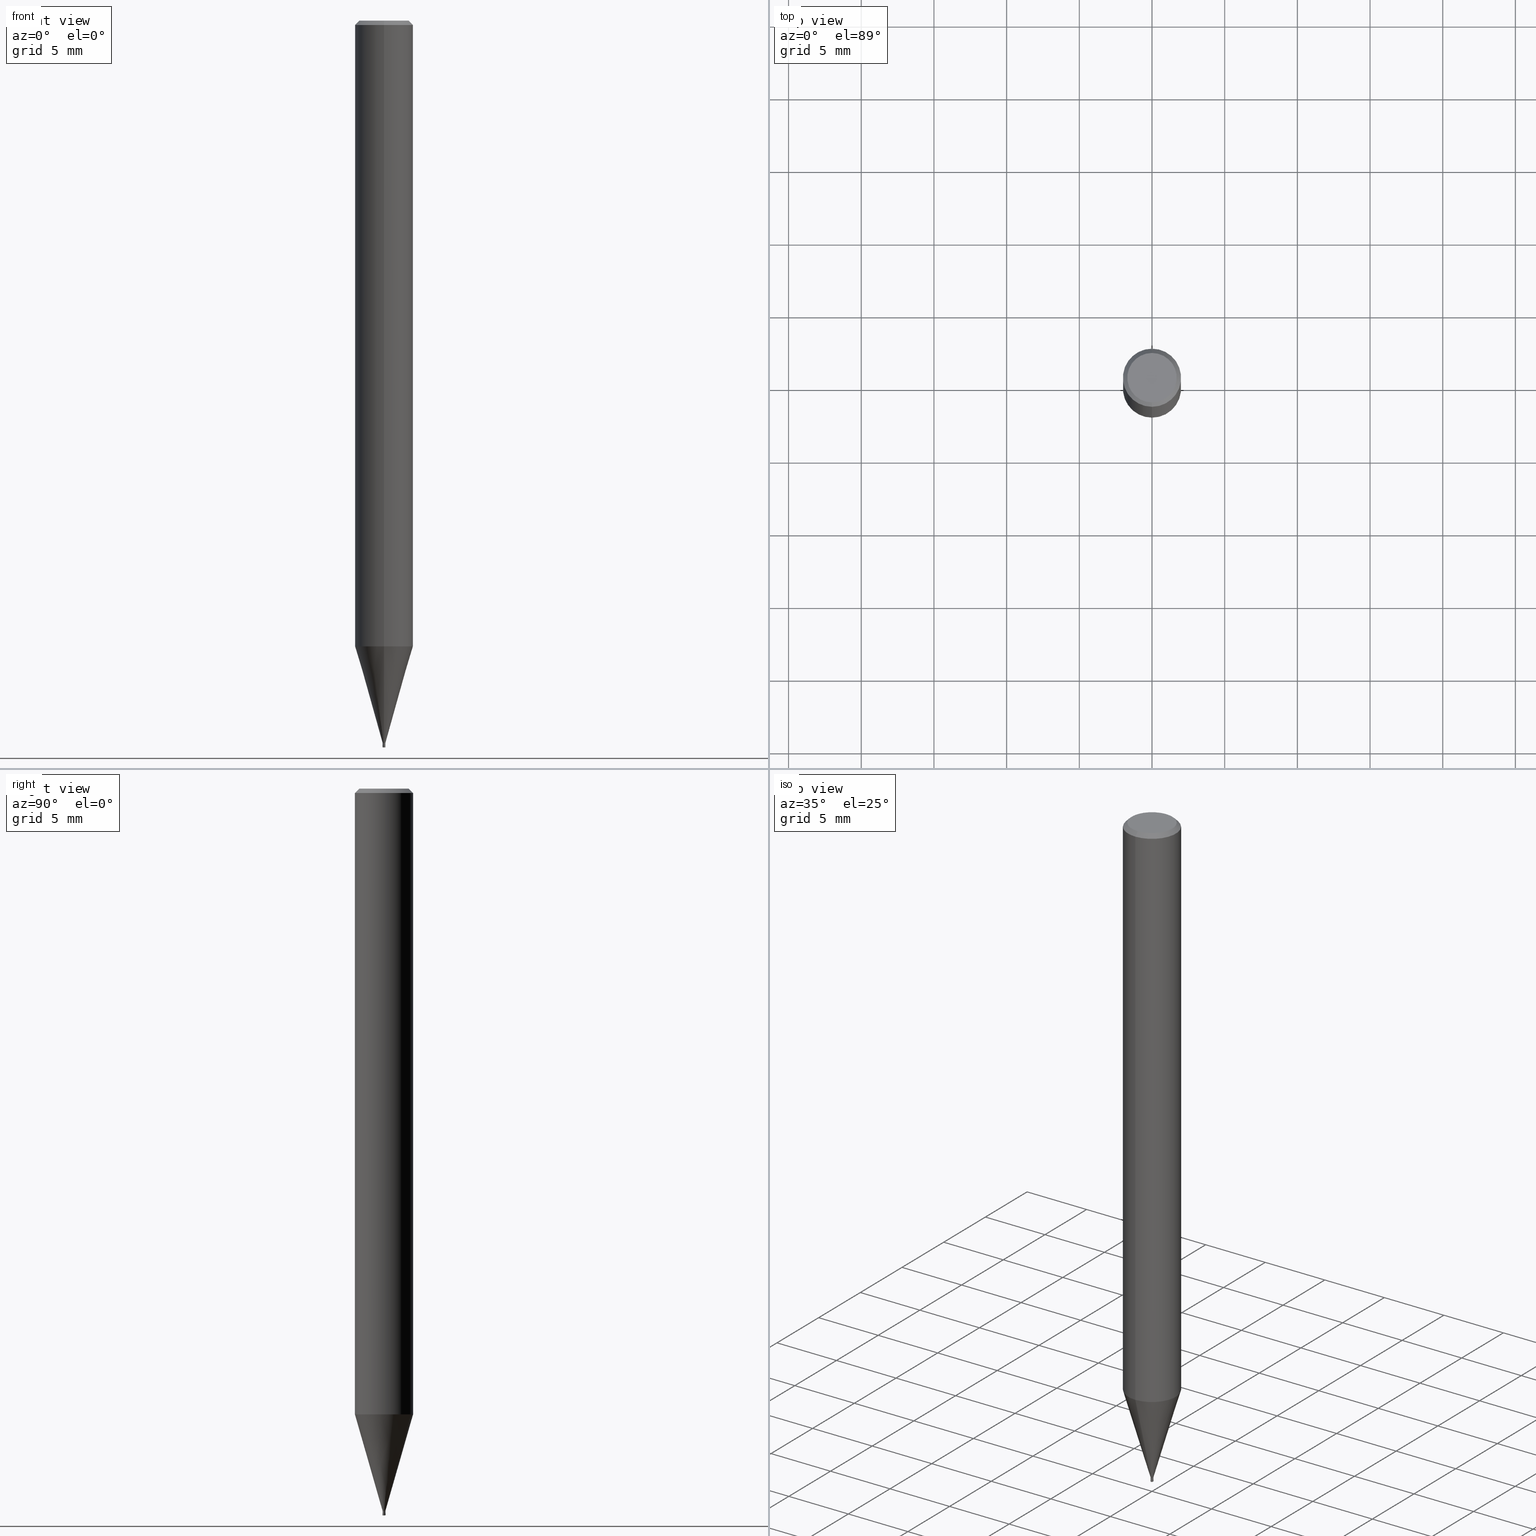
[diagram: canonical four-view strip — front | top / right | iso, engineering-drawing reading convention]
A machine part, canonical four-view strip (front | top / right | iso — engineering-drawing reading convention). The complete STEP part file that produces these views, byte-faithful:
ISO-10303-21;
HEADER;
FILE_DESCRIPTION(('no description'),'unknown implementation level');
FILE_NAME('HLRS4002-002-003-Huellk.stp','  ',('CIMSOURCE GmbH'),('CADClick - KiM GmbH - www.kimweb.de'),'unknown preprocess','ACIS','unknown authorization');
FILE_SCHEMA(('automotive_design'));
ENDSEC;
DATA;
#1=MECHANICAL_DESIGN_GEOMETRIC_PRESENTATION_REPRESENTATION(' ',(#14,#15,#16,#17,#18,#19,#20,#21,#22,#23,#24,#25,#26,#27,#28,#29,#30,#31,#32,#33,#34,#35,#36,#37,#38,#39,#40,#41,#42,#43,#44,#45,#46,#47,#48,#49,#50,#51,#52,#53,#54,#55,#56,#57,#58,#59,#60,#61,#62,#63,#64,#65,#66,#67,#68,#69,#70,#71,#72,#73,#74,#75,#76,#77,#78,#79,#80,#81,#82,#83,#84,#85,#86,#87,#88,#89,#90,#91,#92,#93,#94,#95,#96,#97,#98,#99,#100,#101,#102,#103,#104,#105,#106,#107,#108,#109,#110,#111,#112,#113,#114,#115,#116,#117,#118,#119,#120,#121),#10);
#2=PRODUCT_DEFINITION_CONTEXT('',#122,'design');
#3=APPLICATION_PROTOCOL_DEFINITION('INTERNATIONAL STANDARD','automotive_design',1994,#122);
#4=PRODUCT_CATEGORY_RELATIONSHIP('NONE','NONE',#123,#124);
#5=SHAPE_DEFINITION_REPRESENTATION(#125,#126);
#6=PRODUCT_DEFINITION_CONTEXT('',#127,'design');
#7=APPLICATION_PROTOCOL_DEFINITION('INTERNATIONAL STANDARD','automotive_design',1994,#127);
#8=PRODUCT_CATEGORY_RELATIONSHIP('NONE','NONE',#128,#129);
#9=SHAPE_DEFINITION_REPRESENTATION(#130,#131);
#10= (GEOMETRIC_REPRESENTATION_CONTEXT(3)GLOBAL_UNCERTAINTY_ASSIGNED_CONTEXT((#134))GLOBAL_UNIT_ASSIGNED_CONTEXT((#136,#137,#138))REPRESENTATION_CONTEXT('NONE','WORKSPACE'));
#14=STYLED_ITEM('',(#140),#141);
#15=STYLED_ITEM('',(#142),#143);
#16=STYLED_ITEM('',(#144),#145);
#17=STYLED_ITEM('',(#146),#147);
#18=STYLED_ITEM('',(#148),#149);
#19=STYLED_ITEM('',(#150),#151);
#20=STYLED_ITEM('',(#152),#153);
#21=STYLED_ITEM('',(#154),#155);
#22=STYLED_ITEM('',(#156),#157);
#23=STYLED_ITEM('',(#158),#159);
#24=STYLED_ITEM('',(#160),#161);
#25=STYLED_ITEM('',(#162),#163);
#26=STYLED_ITEM('',(#164),#165);
#27=STYLED_ITEM('',(#166),#167);
#28=STYLED_ITEM('',(#168),#169);
#29=STYLED_ITEM('',(#170),#171);
#30=STYLED_ITEM('',(#172),#173);
#31=STYLED_ITEM('',(#174),#175);
#32=STYLED_ITEM('',(#176),#177);
#33=STYLED_ITEM('',(#178),#179);
#34=STYLED_ITEM('',(#180),#181);
#35=STYLED_ITEM('',(#182),#183);
#36=STYLED_ITEM('',(#184),#185);
#37=STYLED_ITEM('',(#186),#187);
#38=STYLED_ITEM('',(#188),#189);
#39=STYLED_ITEM('',(#190),#191);
#40=STYLED_ITEM('',(#192),#193);
#41=STYLED_ITEM('',(#194),#195);
#42=STYLED_ITEM('',(#196),#197);
#43=STYLED_ITEM('',(#198),#199);
#44=STYLED_ITEM('',(#200),#201);
#45=STYLED_ITEM('',(#202),#203);
#46=STYLED_ITEM('',(#204),#205);
#47=STYLED_ITEM('',(#206),#207);
#48=STYLED_ITEM('',(#208),#209);
#49=STYLED_ITEM('',(#210),#211);
#50=STYLED_ITEM('',(#212),#213);
#51=STYLED_ITEM('',(#214),#215);
#52=STYLED_ITEM('',(#216),#217);
#53=STYLED_ITEM('',(#218),#219);
#54=STYLED_ITEM('',(#220),#221);
#55=STYLED_ITEM('',(#222),#223);
#56=STYLED_ITEM('',(#224),#225);
#57=STYLED_ITEM('',(#226),#227);
#58=STYLED_ITEM('',(#228),#229);
#59=STYLED_ITEM('',(#230),#231);
#60=STYLED_ITEM('',(#232),#233);
#61=STYLED_ITEM('',(#234),#235);
#62=STYLED_ITEM('',(#236),#237);
#63=STYLED_ITEM('',(#238),#239);
#64=STYLED_ITEM('',(#240),#241);
#65=STYLED_ITEM('',(#242),#243);
#66=STYLED_ITEM('',(#244),#245);
#67=STYLED_ITEM('',(#246),#247);
#68=STYLED_ITEM('',(#248),#249);
#69=STYLED_ITEM('',(#250),#251);
#70=STYLED_ITEM('',(#252),#253);
#71=STYLED_ITEM('',(#254),#255);
#72=STYLED_ITEM('',(#256),#257);
#73=STYLED_ITEM('',(#258),#259);
#74=STYLED_ITEM('',(#260),#261);
#75=STYLED_ITEM('',(#262),#263);
#76=STYLED_ITEM('',(#264),#265);
#77=STYLED_ITEM('',(#266),#267);
#78=STYLED_ITEM('',(#268),#269);
#79=STYLED_ITEM('',(#270),#271);
#80=STYLED_ITEM('',(#272),#273);
#81=STYLED_ITEM('',(#274),#275);
#82=STYLED_ITEM('',(#276),#277);
#83=STYLED_ITEM('',(#278),#279);
#84=STYLED_ITEM('',(#280),#281);
#85=STYLED_ITEM('',(#282),#283);
#86=STYLED_ITEM('',(#284),#285);
#87=STYLED_ITEM('',(#286),#287);
#88=STYLED_ITEM('',(#288),#289);
#89=STYLED_ITEM('',(#290),#291);
#90=STYLED_ITEM('',(#292),#293);
#91=STYLED_ITEM('',(#294),#295);
#92=STYLED_ITEM('',(#296),#297);
#93=STYLED_ITEM('',(#298),#299);
#94=STYLED_ITEM('',(#300),#301);
#95=STYLED_ITEM('',(#302),#303);
#96=STYLED_ITEM('',(#304),#305);
#97=STYLED_ITEM('',(#306),#307);
#98=STYLED_ITEM('',(#308),#309);
#99=STYLED_ITEM('',(#310),#311);
#100=STYLED_ITEM('',(#312),#313);
#101=STYLED_ITEM('',(#314),#315);
#102=STYLED_ITEM('',(#316),#317);
#103=STYLED_ITEM('',(#318),#319);
#104=STYLED_ITEM('',(#320),#321);
#105=STYLED_ITEM('',(#322),#323);
#106=STYLED_ITEM('',(#324),#325);
#107=STYLED_ITEM('',(#326),#327);
#108=STYLED_ITEM('',(#328),#329);
#109=STYLED_ITEM('',(#330),#331);
#110=STYLED_ITEM('',(#332),#333);
#111=STYLED_ITEM('',(#334),#335);
#112=STYLED_ITEM('',(#336),#337);
#113=STYLED_ITEM('',(#338),#339);
#114=STYLED_ITEM('',(#340),#341);
#115=STYLED_ITEM('',(#342),#343);
#116=STYLED_ITEM('',(#344),#345);
#117=STYLED_ITEM('',(#346),#347);
#118=STYLED_ITEM('',(#348),#349);
#119=STYLED_ITEM('',(#350),#351);
#120=STYLED_ITEM('',(#352),#353);
#121=STYLED_ITEM('',(#354),#355);
#122=APPLICATION_CONTEXT(' ');
#123=PRODUCT_CATEGORY('part','NONE');
#124=PRODUCT_RELATED_PRODUCT_CATEGORY('detail',' ',(#356));
#125=PRODUCT_DEFINITION_SHAPE('NONE','NONE',#357);
#126=ADVANCED_BREP_SHAPE_REPRESENTATION('1',(#203,#358),#10);
#127=APPLICATION_CONTEXT(' ');
#128=PRODUCT_CATEGORY('part','NONE');
#129=PRODUCT_RELATED_PRODUCT_CATEGORY('detail',' ',(#359));
#130=PRODUCT_DEFINITION_SHAPE('NONE','NONE',#360);
#131=ADVANCED_BREP_SHAPE_REPRESENTATION('2',(#233,#361),#10);
#134=UNCERTAINTY_MEASURE_WITH_UNIT(LENGTH_MEASURE(1.0E-006),#136,'','');
#136= (CONVERSION_BASED_UNIT('MILLIMETRE',#364)LENGTH_UNIT()NAMED_UNIT(#367));
#137= (NAMED_UNIT(#369)PLANE_ANGLE_UNIT()SI_UNIT($,.RADIAN.));
#138= (NAMED_UNIT(#369)SOLID_ANGLE_UNIT()SI_UNIT($,.STERADIAN.));
#140=PRESENTATION_STYLE_ASSIGNMENT((#375));
#141=VERTEX_POINT('',#376);
#142=PRESENTATION_STYLE_ASSIGNMENT((#377));
#143=VERTEX_POINT('',#378);
#144=PRESENTATION_STYLE_ASSIGNMENT((#379));
#145=VERTEX_POINT('',#380);
#146=PRESENTATION_STYLE_ASSIGNMENT((#381));
#147=VERTEX_POINT('',#382);
#148=PRESENTATION_STYLE_ASSIGNMENT((#383));
#149=VERTEX_POINT('',#384);
#150=PRESENTATION_STYLE_ASSIGNMENT((#385));
#151=EDGE_CURVE('',#237,#173,#386,.T.);
#152=PRESENTATION_STYLE_ASSIGNMENT((#387));
#153=EDGE_CURVE('',#169,#269,#388,.T.);
#154=PRESENTATION_STYLE_ASSIGNMENT((#389));
#155=VERTEX_POINT('',#390);
#156=PRESENTATION_STYLE_ASSIGNMENT((#391));
#157=VERTEX_POINT('',#392);
#158=PRESENTATION_STYLE_ASSIGNMENT((#393));
#159=VERTEX_POINT('',#394);
#160=PRESENTATION_STYLE_ASSIGNMENT((#395));
#161=VERTEX_POINT('',#396);
#162=PRESENTATION_STYLE_ASSIGNMENT((#397));
#163=ADVANCED_FACE('',(#398),#399,.T.);
#164=PRESENTATION_STYLE_ASSIGNMENT((#400));
#165=EDGE_CURVE('',#263,#337,#401,.T.);
#166=PRESENTATION_STYLE_ASSIGNMENT((#402));
#167=EDGE_CURVE('',#161,#141,#403,.T.);
#168=PRESENTATION_STYLE_ASSIGNMENT((#404));
#169=VERTEX_POINT('',#405);
#170=PRESENTATION_STYLE_ASSIGNMENT((#406));
#171=EDGE_CURVE('',#261,#333,#407,.T.);
#172=PRESENTATION_STYLE_ASSIGNMENT((#408));
#173=VERTEX_POINT('',#409);
#174=PRESENTATION_STYLE_ASSIGNMENT((#410));
#175=EDGE_CURVE('',#169,#157,#411,.T.);
#176=PRESENTATION_STYLE_ASSIGNMENT((#412));
#177=EDGE_CURVE('',#159,#141,#413,.T.);
#178=PRESENTATION_STYLE_ASSIGNMENT((#414));
#179=EDGE_CURVE('',#173,#237,#415,.T.);
#180=PRESENTATION_STYLE_ASSIGNMENT((#416));
#181=EDGE_CURVE('',#259,#345,#417,.T.);
#182=PRESENTATION_STYLE_ASSIGNMENT((#418));
#183=ADVANCED_FACE('',(#419),#420,.F.);
#184=PRESENTATION_STYLE_ASSIGNMENT((#421));
#185=EDGE_CURVE('',#345,#161,#422,.T.);
#186=PRESENTATION_STYLE_ASSIGNMENT((#423));
#187=EDGE_CURVE('',#337,#235,#424,.T.);
#188=PRESENTATION_STYLE_ASSIGNMENT((#425));
#189=EDGE_CURVE('',#145,#237,#426,.T.);
#190=PRESENTATION_STYLE_ASSIGNMENT((#427));
#191=EDGE_CURVE('',#145,#265,#428,.T.);
#192=PRESENTATION_STYLE_ASSIGNMENT((#429));
#193=ADVANCED_FACE('',(#430),#431,.T.);
#194=PRESENTATION_STYLE_ASSIGNMENT((#432));
#195=EDGE_CURVE('',#141,#161,#433,.T.);
#196=PRESENTATION_STYLE_ASSIGNMENT((#434));
#197=EDGE_CURVE('',#303,#337,#435,.T.);
#198=PRESENTATION_STYLE_ASSIGNMENT((#436));
#199=EDGE_CURVE('',#143,#217,#437,.T.);
#200=PRESENTATION_STYLE_ASSIGNMENT((#438));
#201=EDGE_CURVE('',#265,#145,#439,.T.);
#202=PRESENTATION_STYLE_ASSIGNMENT((#440));
#203=MANIFOLD_SOLID_BREP('1',#441);
#204=PRESENTATION_STYLE_ASSIGNMENT((#442));
#205=EDGE_CURVE('',#211,#263,#443,.T.);
#206=PRESENTATION_STYLE_ASSIGNMENT((#444));
#207=EDGE_CURVE('',#219,#159,#445,.T.);
#208=PRESENTATION_STYLE_ASSIGNMENT((#446));
#209=EDGE_CURVE('',#245,#251,#447,.T.);
#210=PRESENTATION_STYLE_ASSIGNMENT((#448));
#211=VERTEX_POINT('',#449);
#212=PRESENTATION_STYLE_ASSIGNMENT((#450));
#213=EDGE_CURVE('',#303,#211,#451,.T.);
#214=PRESENTATION_STYLE_ASSIGNMENT((#452));
#215=ADVANCED_FACE('',(#453),#454,.T.);
#216=PRESENTATION_STYLE_ASSIGNMENT((#455));
#217=VERTEX_POINT('',#456);
#218=PRESENTATION_STYLE_ASSIGNMENT((#457));
#219=VERTEX_POINT('',#458);
#220=PRESENTATION_STYLE_ASSIGNMENT((#459));
#221=EDGE_CURVE('',#251,#245,#460,.T.);
#222=PRESENTATION_STYLE_ASSIGNMENT((#461));
#223=EDGE_CURVE('',#147,#269,#462,.T.);
#224=PRESENTATION_STYLE_ASSIGNMENT((#463));
#225=ADVANCED_FACE('',(#464),#465,.T.);
#226=PRESENTATION_STYLE_ASSIGNMENT((#466));
#227=EDGE_CURVE('',#149,#261,#467,.T.);
#228=PRESENTATION_STYLE_ASSIGNMENT((#468));
#229=EDGE_CURVE('',#155,#321,#469,.T.);
#230=PRESENTATION_STYLE_ASSIGNMENT((#470));
#231=ADVANCED_FACE('',(#471),#472,.T.);
#232=PRESENTATION_STYLE_ASSIGNMENT((#473));
#233=MANIFOLD_SOLID_BREP('2',#474);
#234=PRESENTATION_STYLE_ASSIGNMENT((#475));
#235=VERTEX_POINT('',#476);
#236=PRESENTATION_STYLE_ASSIGNMENT((#477));
#237=VERTEX_POINT('',#478);
#238=PRESENTATION_STYLE_ASSIGNMENT((#479));
#239=EDGE_CURVE('',#147,#157,#480,.T.);
#240=PRESENTATION_STYLE_ASSIGNMENT((#481));
#241=EDGE_CURVE('',#141,#259,#482,.T.);
#242=PRESENTATION_STYLE_ASSIGNMENT((#483));
#243=VERTEX_POINT('',#484);
#244=PRESENTATION_STYLE_ASSIGNMENT((#485));
#245=VERTEX_POINT('',#486);
#246=PRESENTATION_STYLE_ASSIGNMENT((#487));
#247=VERTEX_POINT('',#488);
#248=PRESENTATION_STYLE_ASSIGNMENT((#489));
#249=ADVANCED_FACE('',(#490),#491,.T.);
#250=PRESENTATION_STYLE_ASSIGNMENT((#492));
#251=VERTEX_POINT('',#493);
#252=PRESENTATION_STYLE_ASSIGNMENT((#494));
#253=EDGE_CURVE('',#337,#303,#495,.T.);
#254=PRESENTATION_STYLE_ASSIGNMENT((#496));
#255=ADVANCED_FACE('',(#497),#498,.T.);
#256=PRESENTATION_STYLE_ASSIGNMENT((#499));
#257=EDGE_CURVE('',#269,#245,#500,.T.);
#258=PRESENTATION_STYLE_ASSIGNMENT((#501));
#259=VERTEX_POINT('',#502);
#260=PRESENTATION_STYLE_ASSIGNMENT((#503));
#261=VERTEX_POINT('',#504);
#262=PRESENTATION_STYLE_ASSIGNMENT((#505));
#263=VERTEX_POINT('',#506);
#264=PRESENTATION_STYLE_ASSIGNMENT((#507));
#265=VERTEX_POINT('',#508);
#266=PRESENTATION_STYLE_ASSIGNMENT((#509));
#267=EDGE_CURVE('',#149,#243,#510,.T.);
#268=PRESENTATION_STYLE_ASSIGNMENT((#511));
#269=VERTEX_POINT('',#512);
#270=PRESENTATION_STYLE_ASSIGNMENT((#513));
#271=ADVANCED_FACE('',(#514),#515,.T.);
#272=PRESENTATION_STYLE_ASSIGNMENT((#516));
#273=EDGE_CURVE('',#269,#147,#517,.T.);
#274=PRESENTATION_STYLE_ASSIGNMENT((#518));
#275=ADVANCED_FACE('',(#519,#520),#521,.T.);
#276=PRESENTATION_STYLE_ASSIGNMENT((#522));
#277=ADVANCED_FACE('',(#523),#524,.T.);
#278=PRESENTATION_STYLE_ASSIGNMENT((#525));
#279=ADVANCED_FACE('',(#526),#527,.T.);
#280=PRESENTATION_STYLE_ASSIGNMENT((#528));
#281=EDGE_CURVE('',#161,#219,#529,.T.);
#282=PRESENTATION_STYLE_ASSIGNMENT((#530));
#283=EDGE_CURVE('',#217,#143,#531,.T.);
#284=PRESENTATION_STYLE_ASSIGNMENT((#532));
#285=EDGE_CURVE('',#345,#259,#533,.T.);
#286=PRESENTATION_STYLE_ASSIGNMENT((#534));
#287=ADVANCED_FACE('',(#535),#536,.F.);
#288=PRESENTATION_STYLE_ASSIGNMENT((#537));
#289=EDGE_CURVE('',#235,#247,#538,.T.);
#290=PRESENTATION_STYLE_ASSIGNMENT((#539));
#291=ADVANCED_FACE('',(#540),#541,.T.);
#292=PRESENTATION_STYLE_ASSIGNMENT((#542));
#293=EDGE_CURVE('',#321,#155,#543,.T.);
#294=PRESENTATION_STYLE_ASSIGNMENT((#544));
#295=EDGE_CURVE('',#243,#149,#545,.T.);
#296=PRESENTATION_STYLE_ASSIGNMENT((#546));
#297=EDGE_CURVE('',#333,#243,#547,.T.);
#298=PRESENTATION_STYLE_ASSIGNMENT((#548));
#299=ADVANCED_FACE('',(#549,#550),#551,.T.);
#300=PRESENTATION_STYLE_ASSIGNMENT((#552));
#301=EDGE_CURVE('',#143,#145,#553,.T.);
#302=PRESENTATION_STYLE_ASSIGNMENT((#554));
#303=VERTEX_POINT('',#555);
#304=PRESENTATION_STYLE_ASSIGNMENT((#556));
#305=EDGE_CURVE('',#155,#243,#557,.T.);
#306=PRESENTATION_STYLE_ASSIGNMENT((#558));
#307=ADVANCED_FACE('',(#559),#560,.T.);
#308=PRESENTATION_STYLE_ASSIGNMENT((#561));
#309=ADVANCED_FACE('',(#562),#563,.T.);
#310=PRESENTATION_STYLE_ASSIGNMENT((#564));
#311=ADVANCED_FACE('',(#565,#566),#567,.T.);
#312=PRESENTATION_STYLE_ASSIGNMENT((#568));
#313=ADVANCED_FACE('',(#569),#570,.T.);
#314=PRESENTATION_STYLE_ASSIGNMENT((#571));
#315=ADVANCED_FACE('',(#572),#573,.T.);
#316=PRESENTATION_STYLE_ASSIGNMENT((#574));
#317=ADVANCED_FACE('',(#575,#576),#577,.T.);
#318=PRESENTATION_STYLE_ASSIGNMENT((#578));
#319=ADVANCED_FACE('',(#579),#580,.F.);
#320=PRESENTATION_STYLE_ASSIGNMENT((#581));
#321=VERTEX_POINT('',#582);
#322=PRESENTATION_STYLE_ASSIGNMENT((#583));
#323=EDGE_CURVE('',#173,#265,#584,.T.);
#324=PRESENTATION_STYLE_ASSIGNMENT((#585));
#325=EDGE_CURVE('',#149,#321,#586,.T.);
#326=PRESENTATION_STYLE_ASSIGNMENT((#587));
#327=ADVANCED_FACE('',(#588),#589,.T.);
#328=PRESENTATION_STYLE_ASSIGNMENT((#590));
#329=EDGE_CURVE('',#265,#217,#591,.T.);
#330=PRESENTATION_STYLE_ASSIGNMENT((#592));
#331=EDGE_CURVE('',#157,#169,#593,.T.);
#332=PRESENTATION_STYLE_ASSIGNMENT((#594));
#333=VERTEX_POINT('',#595);
#334=PRESENTATION_STYLE_ASSIGNMENT((#596));
#335=EDGE_CURVE('',#251,#147,#597,.T.);
#336=PRESENTATION_STYLE_ASSIGNMENT((#598));
#337=VERTEX_POINT('',#599);
#338=PRESENTATION_STYLE_ASSIGNMENT((#600));
#339=EDGE_CURVE('',#247,#303,#601,.T.);
#340=PRESENTATION_STYLE_ASSIGNMENT((#602));
#341=ADVANCED_FACE('',(#603),#604,.F.);
#342=PRESENTATION_STYLE_ASSIGNMENT((#605));
#343=EDGE_CURVE('',#247,#235,#606,.T.);
#344=PRESENTATION_STYLE_ASSIGNMENT((#607));
#345=VERTEX_POINT('',#608);
#346=PRESENTATION_STYLE_ASSIGNMENT((#609));
#347=ADVANCED_FACE('',(#610),#611,.T.);
#348=PRESENTATION_STYLE_ASSIGNMENT((#612));
#349=ADVANCED_FACE('',(#613),#614,.T.);
#350=PRESENTATION_STYLE_ASSIGNMENT((#615));
#351=EDGE_CURVE('',#263,#211,#616,.T.);
#352=PRESENTATION_STYLE_ASSIGNMENT((#617));
#353=EDGE_CURVE('',#333,#261,#618,.T.);
#354=PRESENTATION_STYLE_ASSIGNMENT((#619));
#355=EDGE_CURVE('',#159,#219,#620,.T.);
#356=PRODUCT('1','1','PART-1-DESC',(#621));
#357=PRODUCT_DEFINITION('NONE','NONE',#622,#2);
#358=AXIS2_PLACEMENT_3D('',#623,#624,#625);
#359=PRODUCT('2','2','PART-2-DESC',(#626));
#360=PRODUCT_DEFINITION('NONE','NONE',#627,#6);
#361=AXIS2_PLACEMENT_3D('',#628,#629,#630);
#364=LENGTH_MEASURE_WITH_UNIT(LENGTH_MEASURE(1.0),#631);
#367=DIMENSIONAL_EXPONENTS(1.0,0.0,0.0,0.0,0.0,0.0,0.0);
#369=DIMENSIONAL_EXPONENTS(0.0,0.0,0.0,0.0,0.0,0.0,0.0);
#375=POINT_STYLE(' ',#632,POSITIVE_LENGTH_MEASURE(1.0E-006),#633);
#376=CARTESIAN_POINT('',(5.5107285922007E-018,-0.045,-49.88));
#377=POINT_STYLE(' ',#634,POSITIVE_LENGTH_MEASURE(1.0E-006),#635);
#378=CARTESIAN_POINT('',(0.0,1.99995,-43.038));
#379=POINT_STYLE(' ',#636,POSITIVE_LENGTH_MEASURE(1.0E-006),#637);
#380=CARTESIAN_POINT('',(0.0,0.09245,-49.69));
#381=POINT_STYLE(' ',#638,POSITIVE_LENGTH_MEASURE(1.0E-006),#639);
#382=CARTESIAN_POINT('',(2.44921270764475E-016,-2.0,-0.289999999999999));
#383=POINT_STYLE(' ',#640,POSITIVE_LENGTH_MEASURE(1.0E-006),#641);
#384=CARTESIAN_POINT('',(1.22460635382238E-017,-0.1,-49.97));
#385=CURVE_STYLE('',#642,POSITIVE_LENGTH_MEASURE(1.0E-006),#643);
#386=CIRCLE('',#644,0.09245);
#387=CURVE_STYLE('',#645,POSITIVE_LENGTH_MEASURE(1.0E-006),#646);
#388=LINE('',#647,#648);
#389=POINT_STYLE(' ',#649,POSITIVE_LENGTH_MEASURE(1.0E-006),#650);
#390=CARTESIAN_POINT('',(0.0,0.0999,-49.87));
#391=POINT_STYLE(' ',#651,POSITIVE_LENGTH_MEASURE(1.0E-006),#652);
#392=CARTESIAN_POINT('',(2.08183080149804E-016,-1.7,0.00999999999999801));
#393=POINT_STYLE(' ',#653,POSITIVE_LENGTH_MEASURE(1.0E-006),#654);
#394=CARTESIAN_POINT('',(5.5107285922007E-018,-0.045,-49.99));
#395=POINT_STYLE(' ',#655,POSITIVE_LENGTH_MEASURE(1.0E-006),#656);
#396=CARTESIAN_POINT('',(0.0,0.045,-49.88));
#397=SURFACE_STYLE_USAGE(.BOTH.,#657);
#398=FACE_OUTER_BOUND('',#658,.T.);
#399=CONICAL_SURFACE('',#659,1.0462,0.279262361421134);
#400=CURVE_STYLE('',#660,POSITIVE_LENGTH_MEASURE(1.0E-006),#661);
#401=LINE('',#662,#663);
#402=CURVE_STYLE('',#664,POSITIVE_LENGTH_MEASURE(1.0E-006),#665);
#403=CIRCLE('',#666,0.045);
#404=POINT_STYLE(' ',#667,POSITIVE_LENGTH_MEASURE(1.0E-006),#668);
#405=CARTESIAN_POINT('',(0.0,1.7,0.00999999999999801));
#406=CURVE_STYLE('',#669,POSITIVE_LENGTH_MEASURE(1.0E-006),#670);
#407=CIRCLE('',#671,0.08);
#408=POINT_STYLE(' ',#672,POSITIVE_LENGTH_MEASURE(1.0E-006),#673);
#409=CARTESIAN_POINT('',(1.13214857410879E-017,-0.09245,-49.87));
#410=CURVE_STYLE('',#674,POSITIVE_LENGTH_MEASURE(1.0E-006),#675);
#411=CIRCLE('',#676,1.7);
#412=CURVE_STYLE('',#677,POSITIVE_LENGTH_MEASURE(1.0E-006),#678);
#413=LINE('',#679,#680);
#414=CURVE_STYLE('',#681,POSITIVE_LENGTH_MEASURE(1.0E-006),#682);
#415=CIRCLE('',#683,0.09245);
#416=CURVE_STYLE('',#684,POSITIVE_LENGTH_MEASURE(1.0E-006),#685);
#417=CIRCLE('',#686,0.0949);
#418=SURFACE_STYLE_USAGE(.BOTH.,#687);
#419=FACE_OUTER_BOUND('',#688,.T.);
#420=CONICAL_SURFACE('',#689,0.06995,1.37301541050937);
#421=CURVE_STYLE('',#690,POSITIVE_LENGTH_MEASURE(1.0E-006),#691);
#422=LINE('',#692,#693);
#423=CURVE_STYLE('',#694,POSITIVE_LENGTH_MEASURE(1.0E-006),#695);
#424=LINE('',#696,#697);
#425=CURVE_STYLE('',#698,POSITIVE_LENGTH_MEASURE(1.0E-006),#699);
#426=LINE('',#700,#701);
#427=CURVE_STYLE('',#702,POSITIVE_LENGTH_MEASURE(1.0E-006),#703);
#428=CIRCLE('',#704,0.09245);
#429=SURFACE_STYLE_USAGE(.BOTH.,#705);
#430=FACE_OUTER_BOUND('',#706,.T.);
#431=CONICAL_SURFACE('',#707,0.069975,1.37320827416588);
#432=CURVE_STYLE('',#708,POSITIVE_LENGTH_MEASURE(1.0E-006),#709);
#433=CIRCLE('',#710,0.045);
#434=CURVE_STYLE('',#711,POSITIVE_LENGTH_MEASURE(1.0E-006),#712);
#435=CIRCLE('',#713,0.045);
#436=CURVE_STYLE('',#714,POSITIVE_LENGTH_MEASURE(1.0E-006),#715);
#437=CIRCLE('',#716,1.99995);
#438=CURVE_STYLE('',#717,POSITIVE_LENGTH_MEASURE(1.0E-006),#718);
#439=CIRCLE('',#719,0.09245);
#440=SURFACE_STYLE_USAGE(.BOTH.,#720);
#441=CLOSED_SHELL('',(#215,#327,#309,#163,#249,#347,#311,#315,#291,#231,#225,#307,#299,#193,#271,#349));
#442=CURVE_STYLE('',#721,POSITIVE_LENGTH_MEASURE(1.0E-006),#722);
#443=CIRCLE('',#723,0.045);
#444=CURVE_STYLE('',#724,POSITIVE_LENGTH_MEASURE(1.0E-006),#725);
#445=CIRCLE('',#726,0.045);
#446=CURVE_STYLE('',#727,POSITIVE_LENGTH_MEASURE(1.0E-006),#728);
#447=CIRCLE('',#729,2.0);
#448=POINT_STYLE(' ',#730,POSITIVE_LENGTH_MEASURE(1.0E-006),#731);
#449=CARTESIAN_POINT('',(0.0,0.045,-49.96));
#450=CURVE_STYLE('',#732,POSITIVE_LENGTH_MEASURE(1.0E-006),#733);
#451=LINE('',#734,#735);
#452=SURFACE_STYLE_USAGE(.BOTH.,#736);
#453=FACE_OUTER_BOUND('',#737,.T.);
#454=CYLINDRICAL_SURFACE('',#738,0.045);
#455=POINT_STYLE(' ',#739,POSITIVE_LENGTH_MEASURE(1.0E-006),#740);
#456=CARTESIAN_POINT('',(2.44915147732706E-016,-1.99995,-43.038));
#457=POINT_STYLE(' ',#741,POSITIVE_LENGTH_MEASURE(1.0E-006),#742);
#458=CARTESIAN_POINT('',(0.0,0.045,-49.99));
#459=CURVE_STYLE('',#743,POSITIVE_LENGTH_MEASURE(1.0E-006),#744);
#460=CIRCLE('',#745,2.0);
#461=CURVE_STYLE('',#746,POSITIVE_LENGTH_MEASURE(1.0E-006),#747);
#462=CIRCLE('',#748,2.0);
#463=SURFACE_STYLE_USAGE(.BOTH.,#749);
#464=FACE_OUTER_BOUND('',#750,.T.);
#465=CONICAL_SURFACE('',#751,1.0462,0.279262361421134);
#466=CURVE_STYLE('',#752,POSITIVE_LENGTH_MEASURE(1.0E-006),#753);
#467=CIRCLE('',#754,0.02);
#468=CURVE_STYLE('',#755,POSITIVE_LENGTH_MEASURE(1.0E-006),#756);
#469=CIRCLE('',#757,0.0999);
#470=SURFACE_STYLE_USAGE(.BOTH.,#758);
#471=FACE_OUTER_BOUND('',#759,.T.);
#472=CYLINDRICAL_SURFACE('',#760,2.0);
#473=SURFACE_STYLE_USAGE(.BOTH.,#761);
#474=CLOSED_SHELL('',(#341,#279,#255,#287,#183,#317,#277,#313,#275,#319));
#475=POINT_STYLE(' ',#762,POSITIVE_LENGTH_MEASURE(1.0E-006),#763);
#476=CARTESIAN_POINT('',(1.16276373295435E-017,-0.09495,-49.87));
#477=POINT_STYLE(' ',#764,POSITIVE_LENGTH_MEASURE(1.0E-006),#765);
#478=CARTESIAN_POINT('',(0.0,0.09245,-49.87));
#479=CURVE_STYLE('',#766,POSITIVE_LENGTH_MEASURE(1.0E-006),#767);
#480=LINE('',#768,#769);
#481=CURVE_STYLE('',#770,POSITIVE_LENGTH_MEASURE(1.0E-006),#771);
#482=LINE('',#772,#773);
#483=POINT_STYLE(' ',#774,POSITIVE_LENGTH_MEASURE(1.0E-006),#775);
#484=CARTESIAN_POINT('',(0.0,0.1,-49.97));
#485=POINT_STYLE(' ',#776,POSITIVE_LENGTH_MEASURE(1.0E-006),#777);
#486=CARTESIAN_POINT('',(0.0,2.0,-43.038));
#487=POINT_STYLE(' ',#778,POSITIVE_LENGTH_MEASURE(1.0E-006),#779);
#488=CARTESIAN_POINT('',(0.0,0.09495,-49.87));
#489=SURFACE_STYLE_USAGE(.BOTH.,#780);
#490=FACE_OUTER_BOUND('',#781,.T.);
#491=CYLINDRICAL_SURFACE('',#782,2.0);
#492=POINT_STYLE(' ',#783,POSITIVE_LENGTH_MEASURE(1.0E-006),#784);
#493=CARTESIAN_POINT('',(2.44921270764475E-016,-2.0,-43.038));
#494=CURVE_STYLE('',#785,POSITIVE_LENGTH_MEASURE(1.0E-006),#786);
#495=CIRCLE('',#787,0.045);
#496=SURFACE_STYLE_USAGE(.BOTH.,#788);
#497=FACE_OUTER_BOUND('',#789,.T.);
#498=CONICAL_SURFACE('',#790,0.09995,0.000999999666666895);
#499=CURVE_STYLE('',#791,POSITIVE_LENGTH_MEASURE(1.0E-006),#792);
#500=LINE('',#793,#794);
#501=POINT_STYLE(' ',#795,POSITIVE_LENGTH_MEASURE(1.0E-006),#796);
#502=CARTESIAN_POINT('',(1.16215142977744E-017,-0.0949,-49.87));
#503=POINT_STYLE(' ',#797,POSITIVE_LENGTH_MEASURE(1.0E-006),#798);
#504=CARTESIAN_POINT('',(9.79685083057902E-018,-0.08,-49.99));
#505=POINT_STYLE(' ',#799,POSITIVE_LENGTH_MEASURE(1.0E-006),#800);
#506=CARTESIAN_POINT('',(5.5107285922007E-018,-0.045,-49.96));
#507=POINT_STYLE(' ',#801,POSITIVE_LENGTH_MEASURE(1.0E-006),#802);
#508=CARTESIAN_POINT('',(1.13214857410879E-017,-0.09245,-49.69));
#509=CURVE_STYLE('',#803,POSITIVE_LENGTH_MEASURE(1.0E-006),#804);
#510=CIRCLE('',#805,0.1);
#511=POINT_STYLE(' ',#806,POSITIVE_LENGTH_MEASURE(1.0E-006),#807);
#512=CARTESIAN_POINT('',(0.0,2.0,-0.289999999999999));
#513=SURFACE_STYLE_USAGE(.BOTH.,#808);
#514=FACE_OUTER_BOUND('',#809,.T.);
#515=CYLINDRICAL_SURFACE('',#810,0.045);
#516=CURVE_STYLE('',#811,POSITIVE_LENGTH_MEASURE(1.0E-006),#812);
#517=CIRCLE('',#813,2.0);
#518=SURFACE_STYLE_USAGE(.BOTH.,#814);
#519=FACE_BOUND('',#815,.T.);
#520=FACE_OUTER_BOUND('',#816,.T.);
#521=PLANE('',#817);
#522=SURFACE_STYLE_USAGE(.BOTH.,#818);
#523=FACE_OUTER_BOUND('',#819,.T.);
#524=CONICAL_SURFACE('',#820,0.09995,0.000999999666666895);
#525=SURFACE_STYLE_USAGE(.BOTH.,#821);
#526=FACE_OUTER_BOUND('',#822,.T.);
#527=TOROIDAL_SURFACE('',#823,0.08,0.02);
#528=CURVE_STYLE('',#824,POSITIVE_LENGTH_MEASURE(1.0E-006),#825);
#529=LINE('',#826,#827);
#530=CURVE_STYLE('',#828,POSITIVE_LENGTH_MEASURE(1.0E-006),#829);
#531=CIRCLE('',#830,1.99995);
#532=CURVE_STYLE('',#831,POSITIVE_LENGTH_MEASURE(1.0E-006),#832);
#533=CIRCLE('',#833,0.0949);
#534=SURFACE_STYLE_USAGE(.BOTH.,#834);
#535=FACE_OUTER_BOUND('',#835,.T.);
#536=CONICAL_SURFACE('',#836,0.06995,1.37301541050937);
#537=CURVE_STYLE('',#837,POSITIVE_LENGTH_MEASURE(1.0E-006),#838);
#538=CIRCLE('',#839,0.09495);
#539=SURFACE_STYLE_USAGE(.BOTH.,#840);
#540=FACE_OUTER_BOUND('',#841,.T.);
#541=CONICAL_SURFACE('',#842,1.85,0.785398163397453);
#542=CURVE_STYLE('',#843,POSITIVE_LENGTH_MEASURE(1.0E-006),#844);
#543=CIRCLE('',#845,0.0999);
#544=CURVE_STYLE('',#846,POSITIVE_LENGTH_MEASURE(1.0E-006),#847);
#545=CIRCLE('',#848,0.1);
#546=CURVE_STYLE('',#849,POSITIVE_LENGTH_MEASURE(1.0E-006),#850);
#547=CIRCLE('',#851,0.02);
#548=SURFACE_STYLE_USAGE(.BOTH.,#852);
#549=FACE_OUTER_BOUND('',#853,.T.);
#550=FACE_BOUND('',#854,.T.);
#551=PLANE('',#855);
#552=CURVE_STYLE('',#856,POSITIVE_LENGTH_MEASURE(1.0E-006),#857);
#553=LINE('',#858,#859);
#554=POINT_STYLE(' ',#860,POSITIVE_LENGTH_MEASURE(1.0E-006),#861);
#555=CARTESIAN_POINT('',(0.0,0.045,-49.88));
#556=CURVE_STYLE('',#862,POSITIVE_LENGTH_MEASURE(1.0E-006),#863);
#557=LINE('',#864,#865);
#558=SURFACE_STYLE_USAGE(.BOTH.,#866);
#559=FACE_OUTER_BOUND('',#867,.T.);
#560=CYLINDRICAL_SURFACE('',#868,0.09245);
#561=SURFACE_STYLE_USAGE(.BOTH.,#869);
#562=FACE_OUTER_BOUND('',#870,.T.);
#563=CYLINDRICAL_SURFACE('',#871,0.09245);
#564=SURFACE_STYLE_USAGE(.BOTH.,#872);
#565=FACE_OUTER_BOUND('',#873,.T.);
#566=FACE_BOUND('',#874,.T.);
#567=PLANE('',#875);
#568=SURFACE_STYLE_USAGE(.BOTH.,#876);
#569=FACE_OUTER_BOUND('',#877,.T.);
#570=TOROIDAL_SURFACE('',#878,0.08,0.02);
#571=SURFACE_STYLE_USAGE(.BOTH.,#879);
#572=FACE_OUTER_BOUND('',#880,.T.);
#573=PLANE('',#881);
#574=SURFACE_STYLE_USAGE(.BOTH.,#882);
#575=FACE_OUTER_BOUND('',#883,.T.);
#576=FACE_BOUND('',#884,.T.);
#577=PLANE('',#885);
#578=SURFACE_STYLE_USAGE(.BOTH.,#886);
#579=FACE_OUTER_BOUND('',#887,.T.);
#580=CYLINDRICAL_SURFACE('',#888,0.045);
#581=POINT_STYLE(' ',#889,POSITIVE_LENGTH_MEASURE(1.0E-006),#890);
#582=CARTESIAN_POINT('',(1.22338174746856E-017,-0.0999,-49.87));
#583=CURVE_STYLE('',#891,POSITIVE_LENGTH_MEASURE(1.0E-006),#892);
#584=LINE('',#893,#894);
#585=CURVE_STYLE('',#895,POSITIVE_LENGTH_MEASURE(1.0E-006),#896);
#586=LINE('',#897,#898);
#587=SURFACE_STYLE_USAGE(.BOTH.,#899);
#588=FACE_OUTER_BOUND('',#900,.T.);
#589=CONICAL_SURFACE('',#901,0.069975,1.37320827416588);
#590=CURVE_STYLE('',#902,POSITIVE_LENGTH_MEASURE(1.0E-006),#903);
#591=LINE('',#904,#905);
#592=CURVE_STYLE('',#906,POSITIVE_LENGTH_MEASURE(1.0E-006),#907);
#593=CIRCLE('',#908,1.7);
#594=POINT_STYLE(' ',#909,POSITIVE_LENGTH_MEASURE(1.0E-006),#910);
#595=CARTESIAN_POINT('',(0.0,0.08,-49.99));
#596=CURVE_STYLE('',#911,POSITIVE_LENGTH_MEASURE(1.0E-006),#912);
#597=LINE('',#913,#914);
#598=POINT_STYLE(' ',#915,POSITIVE_LENGTH_MEASURE(1.0E-006),#916);
#599=CARTESIAN_POINT('',(5.5107285922007E-018,-0.045,-49.88));
#600=CURVE_STYLE('',#917,POSITIVE_LENGTH_MEASURE(1.0E-006),#918);
#601=LINE('',#919,#920);
#602=SURFACE_STYLE_USAGE(.BOTH.,#921);
#603=FACE_OUTER_BOUND('',#922,.T.);
#604=CYLINDRICAL_SURFACE('',#923,0.045);
#605=CURVE_STYLE('',#924,POSITIVE_LENGTH_MEASURE(1.0E-006),#925);
#606=CIRCLE('',#926,0.09495);
#607=POINT_STYLE(' ',#927,POSITIVE_LENGTH_MEASURE(1.0E-006),#928);
#608=CARTESIAN_POINT('',(0.0,0.0949,-49.87));
#609=SURFACE_STYLE_USAGE(.BOTH.,#929);
#610=FACE_OUTER_BOUND('',#930,.T.);
#611=CONICAL_SURFACE('',#931,1.85,0.785398163397453);
#612=SURFACE_STYLE_USAGE(.BOTH.,#932);
#613=FACE_OUTER_BOUND('',#933,.T.);
#614=PLANE('',#934);
#615=CURVE_STYLE('',#935,POSITIVE_LENGTH_MEASURE(1.0E-006),#936);
#616=CIRCLE('',#937,0.045);
#617=CURVE_STYLE('',#938,POSITIVE_LENGTH_MEASURE(1.0E-006),#939);
#618=CIRCLE('',#940,0.08);
#619=CURVE_STYLE('',#941,POSITIVE_LENGTH_MEASURE(1.0E-006),#942);
#620=CIRCLE('',#943,0.045);
#621=PRODUCT_CONTEXT('',#122,'mechanical');
#622=PRODUCT_DEFINITION_FORMATION_WITH_SPECIFIED_SOURCE(' ','NONE',#356,.NOT_KNOWN.);
#623=CARTESIAN_POINT('',(0.0,0.0,0.0));
#624=DIRECTION('',(0.0,0.0,1.0));
#625=DIRECTION('',(1.0,0.0,0.0));
#626=PRODUCT_CONTEXT('',#127,'mechanical');
#627=PRODUCT_DEFINITION_FORMATION_WITH_SPECIFIED_SOURCE(' ','NONE',#359,.NOT_KNOWN.);
#628=CARTESIAN_POINT('',(0.0,0.0,0.0));
#629=DIRECTION('',(0.0,0.0,1.0));
#630=DIRECTION('',(1.0,0.0,0.0));
#631= (NAMED_UNIT(#367)LENGTH_UNIT()SI_UNIT(.MILLI.,.METRE.));
#632=PRE_DEFINED_MARKER('');
#633=COLOUR_RGB('',0.800000011920929,0.800000011920929,0.800000011920929);
#634=PRE_DEFINED_MARKER('');
#635=COLOUR_RGB('',0.498039215803146,0.498039215803146,0.498039215803146);
#636=PRE_DEFINED_MARKER('');
#637=COLOUR_RGB('',0.498039215803146,0.498039215803146,0.498039215803146);
#638=PRE_DEFINED_MARKER('');
#639=COLOUR_RGB('',0.498039215803146,0.498039215803146,0.498039215803146);
#640=PRE_DEFINED_MARKER('');
#641=COLOUR_RGB('',0.800000011920929,0.800000011920929,0.800000011920929);
#642=DRAUGHTING_PRE_DEFINED_CURVE_FONT('continuous');
#643=COLOUR_RGB('',0.498039215803146,0.498039215803146,0.498039215803146);
#644=AXIS2_PLACEMENT_3D('',#945,#946,#947);
#645=DRAUGHTING_PRE_DEFINED_CURVE_FONT('continuous');
#646=COLOUR_RGB('',0.498039215803146,0.498039215803146,0.498039215803146);
#647=CARTESIAN_POINT('',(-2.2655217545714E-016,1.85,-0.140000000000001));
#648=VECTOR('',#948,1.0);
#649=PRE_DEFINED_MARKER('');
#650=COLOUR_RGB('',0.800000011920929,0.800000011920929,0.800000011920929);
#651=PRE_DEFINED_MARKER('');
#652=COLOUR_RGB('',0.498039215803146,0.498039215803146,0.498039215803146);
#653=PRE_DEFINED_MARKER('');
#654=COLOUR_RGB('',0.800000011920929,0.800000011920929,0.800000011920929);
#655=PRE_DEFINED_MARKER('');
#656=COLOUR_RGB('',0.800000011920929,0.800000011920929,0.800000011920929);
#657=SURFACE_SIDE_STYLE('',(#949));
#658=EDGE_LOOP('',(#950,#951,#952,#953));
#659=AXIS2_PLACEMENT_3D('',#954,#955,#956);
#660=DRAUGHTING_PRE_DEFINED_CURVE_FONT('continuous');
#661=COLOUR_RGB('',0.498039215803146,0.498039215803146,0.498039215803146);
#662=CARTESIAN_POINT('',(5.5107285922007E-018,-0.045,-49.92));
#663=VECTOR('',#957,1.0);
#664=DRAUGHTING_PRE_DEFINED_CURVE_FONT('continuous');
#665=COLOUR_RGB('',0.800000011920929,0.800000011920929,0.800000011920929);
#666=AXIS2_PLACEMENT_3D('',#958,#959,#960);
#667=PRE_DEFINED_MARKER('');
#668=COLOUR_RGB('',0.498039215803146,0.498039215803146,0.498039215803146);
#669=DRAUGHTING_PRE_DEFINED_CURVE_FONT('continuous');
#670=COLOUR_RGB('',0.800000011920929,0.800000011920929,0.800000011920929);
#671=AXIS2_PLACEMENT_3D('',#961,#962,#963);
#672=PRE_DEFINED_MARKER('');
#673=COLOUR_RGB('',0.498039215803146,0.498039215803146,0.498039215803146);
#674=DRAUGHTING_PRE_DEFINED_CURVE_FONT('continuous');
#675=COLOUR_RGB('',0.498039215803146,0.498039215803146,0.498039215803146);
#676=AXIS2_PLACEMENT_3D('',#964,#965,#966);
#677=DRAUGHTING_PRE_DEFINED_CURVE_FONT('continuous');
#678=COLOUR_RGB('',0.800000011920929,0.800000011920929,0.800000011920929);
#679=CARTESIAN_POINT('',(5.5107285922007E-018,-0.045,-49.935));
#680=VECTOR('',#967,1.0);
#681=DRAUGHTING_PRE_DEFINED_CURVE_FONT('continuous');
#682=COLOUR_RGB('',0.498039215803146,0.498039215803146,0.498039215803146);
#683=AXIS2_PLACEMENT_3D('',#968,#969,#970);
#684=DRAUGHTING_PRE_DEFINED_CURVE_FONT('continuous');
#685=COLOUR_RGB('',0.800000011920929,0.800000011920929,0.800000011920929);
#686=AXIS2_PLACEMENT_3D('',#971,#972,#973);
#687=SURFACE_SIDE_STYLE('',(#974));
#688=EDGE_LOOP('',(#975,#976,#977,#978));
#689=AXIS2_PLACEMENT_3D('',#979,#980,#981);
#690=DRAUGHTING_PRE_DEFINED_CURVE_FONT('continuous');
#691=COLOUR_RGB('',0.800000011920929,0.800000011920929,0.800000011920929);
#692=CARTESIAN_POINT('',(-8.56612144498752E-018,0.06995,-49.875));
#693=VECTOR('',#982,1.0);
#694=DRAUGHTING_PRE_DEFINED_CURVE_FONT('continuous');
#695=COLOUR_RGB('',0.498039215803146,0.498039215803146,0.498039215803146);
#696=CARTESIAN_POINT('',(8.56918296087209E-018,-0.069975,-49.875));
#697=VECTOR('',#983,1.0);
#698=DRAUGHTING_PRE_DEFINED_CURVE_FONT('continuous');
#699=COLOUR_RGB('',0.498039215803146,0.498039215803146,0.498039215803146);
#700=CARTESIAN_POINT('',(-1.13214857410879E-017,0.09245,-49.78));
#701=VECTOR('',#984,1.0);
#702=DRAUGHTING_PRE_DEFINED_CURVE_FONT('continuous');
#703=COLOUR_RGB('',0.498039215803146,0.498039215803146,0.498039215803146);
#704=AXIS2_PLACEMENT_3D('',#985,#986,#987);
#705=SURFACE_SIDE_STYLE('',(#988));
#706=EDGE_LOOP('',(#989,#990,#991,#992));
#707=AXIS2_PLACEMENT_3D('',#993,#994,#995);
#708=DRAUGHTING_PRE_DEFINED_CURVE_FONT('continuous');
#709=COLOUR_RGB('',0.800000011920929,0.800000011920929,0.800000011920929);
#710=AXIS2_PLACEMENT_3D('',#996,#997,#998);
#711=DRAUGHTING_PRE_DEFINED_CURVE_FONT('continuous');
#712=COLOUR_RGB('',0.498039215803146,0.498039215803146,0.498039215803146);
#713=AXIS2_PLACEMENT_3D('',#999,#1000,#1001);
#714=DRAUGHTING_PRE_DEFINED_CURVE_FONT('continuous');
#715=COLOUR_RGB('',0.498039215803146,0.498039215803146,0.498039215803146);
#716=AXIS2_PLACEMENT_3D('',#1002,#1003,#1004);
#717=DRAUGHTING_PRE_DEFINED_CURVE_FONT('continuous');
#718=COLOUR_RGB('',0.498039215803146,0.498039215803146,0.498039215803146);
#719=AXIS2_PLACEMENT_3D('',#1005,#1006,#1007);
#720=SURFACE_SIDE_STYLE('',(#1008));
#721=DRAUGHTING_PRE_DEFINED_CURVE_FONT('continuous');
#722=COLOUR_RGB('',0.498039215803146,0.498039215803146,0.498039215803146);
#723=AXIS2_PLACEMENT_3D('',#1009,#1010,#1011);
#724=DRAUGHTING_PRE_DEFINED_CURVE_FONT('continuous');
#725=COLOUR_RGB('',0.800000011920929,0.800000011920929,0.800000011920929);
#726=AXIS2_PLACEMENT_3D('',#1012,#1013,#1014);
#727=DRAUGHTING_PRE_DEFINED_CURVE_FONT('continuous');
#728=COLOUR_RGB('',0.498039215803146,0.498039215803146,0.498039215803146);
#729=AXIS2_PLACEMENT_3D('',#1015,#1016,#1017);
#730=PRE_DEFINED_MARKER('');
#731=COLOUR_RGB('',0.498039215803146,0.498039215803146,0.498039215803146);
#732=DRAUGHTING_PRE_DEFINED_CURVE_FONT('continuous');
#733=COLOUR_RGB('',0.498039215803146,0.498039215803146,0.498039215803146);
#734=CARTESIAN_POINT('',(-5.5107285922007E-018,0.045,-49.92));
#735=VECTOR('',#1018,1.0);
#736=SURFACE_SIDE_STYLE('',(#1019));
#737=EDGE_LOOP('',(#1020,#1021,#1022,#1023));
#738=AXIS2_PLACEMENT_3D('',#1024,#1025,#1026);
#739=PRE_DEFINED_MARKER('');
#740=COLOUR_RGB('',0.498039215803146,0.498039215803146,0.498039215803146);
#741=PRE_DEFINED_MARKER('');
#742=COLOUR_RGB('',0.800000011920929,0.800000011920929,0.800000011920929);
#743=DRAUGHTING_PRE_DEFINED_CURVE_FONT('continuous');
#744=COLOUR_RGB('',0.498039215803146,0.498039215803146,0.498039215803146);
#745=AXIS2_PLACEMENT_3D('',#1027,#1028,#1029);
#746=DRAUGHTING_PRE_DEFINED_CURVE_FONT('continuous');
#747=COLOUR_RGB('',0.498039215803146,0.498039215803146,0.498039215803146);
#748=AXIS2_PLACEMENT_3D('',#1030,#1031,#1032);
#749=SURFACE_SIDE_STYLE('',(#1033));
#750=EDGE_LOOP('',(#1034,#1035,#1036,#1037));
#751=AXIS2_PLACEMENT_3D('',#1038,#1039,#1040);
#752=DRAUGHTING_PRE_DEFINED_CURVE_FONT('continuous');
#753=COLOUR_RGB('',0.800000011920929,0.800000011920929,0.800000011920929);
#754=AXIS2_PLACEMENT_3D('',#1041,#1042,#1043);
#755=DRAUGHTING_PRE_DEFINED_CURVE_FONT('continuous');
#756=COLOUR_RGB('',0.800000011920929,0.800000011920929,0.800000011920929);
#757=AXIS2_PLACEMENT_3D('',#1044,#1045,#1046);
#758=SURFACE_SIDE_STYLE('',(#1047));
#759=EDGE_LOOP('',(#1048,#1049,#1050,#1051));
#760=AXIS2_PLACEMENT_3D('',#1052,#1053,#1054);
#761=SURFACE_SIDE_STYLE('',(#1055));
#762=PRE_DEFINED_MARKER('');
#763=COLOUR_RGB('',0.498039215803146,0.498039215803146,0.498039215803146);
#764=PRE_DEFINED_MARKER('');
#765=COLOUR_RGB('',0.498039215803146,0.498039215803146,0.498039215803146);
#766=DRAUGHTING_PRE_DEFINED_CURVE_FONT('continuous');
#767=COLOUR_RGB('',0.498039215803146,0.498039215803146,0.498039215803146);
#768=CARTESIAN_POINT('',(2.2655217545714E-016,-1.85,-0.140000000000001));
#769=VECTOR('',#1056,1.0);
#770=DRAUGHTING_PRE_DEFINED_CURVE_FONT('continuous');
#771=COLOUR_RGB('',0.800000011920929,0.800000011920929,0.800000011920929);
#772=CARTESIAN_POINT('',(8.56612144498753E-018,-0.06995,-49.875));
#773=VECTOR('',#1057,1.0);
#774=PRE_DEFINED_MARKER('');
#775=COLOUR_RGB('',0.800000011920929,0.800000011920929,0.800000011920929);
#776=PRE_DEFINED_MARKER('');
#777=COLOUR_RGB('',0.498039215803146,0.498039215803146,0.498039215803146);
#778=PRE_DEFINED_MARKER('');
#779=COLOUR_RGB('',0.498039215803146,0.498039215803146,0.498039215803146);
#780=SURFACE_SIDE_STYLE('',(#1058));
#781=EDGE_LOOP('',(#1059,#1060,#1061,#1062));
#782=AXIS2_PLACEMENT_3D('',#1063,#1064,#1065);
#783=PRE_DEFINED_MARKER('');
#784=COLOUR_RGB('',0.498039215803146,0.498039215803146,0.498039215803146);
#785=DRAUGHTING_PRE_DEFINED_CURVE_FONT('continuous');
#786=COLOUR_RGB('',0.498039215803146,0.498039215803146,0.498039215803146);
#787=AXIS2_PLACEMENT_3D('',#1066,#1067,#1068);
#788=SURFACE_SIDE_STYLE('',(#1069));
#789=EDGE_LOOP('',(#1070,#1071,#1072,#1073));
#790=AXIS2_PLACEMENT_3D('',#1074,#1075,#1076);
#791=DRAUGHTING_PRE_DEFINED_CURVE_FONT('continuous');
#792=COLOUR_RGB('',0.498039215803146,0.498039215803146,0.498039215803146);
#793=CARTESIAN_POINT('',(-2.44921270764475E-016,2.0,-21.664));
#794=VECTOR('',#1077,1.0);
#795=PRE_DEFINED_MARKER('');
#796=COLOUR_RGB('',0.800000011920929,0.800000011920929,0.800000011920929);
#797=PRE_DEFINED_MARKER('');
#798=COLOUR_RGB('',0.800000011920929,0.800000011920929,0.800000011920929);
#799=PRE_DEFINED_MARKER('');
#800=COLOUR_RGB('',0.498039215803146,0.498039215803146,0.498039215803146);
#801=PRE_DEFINED_MARKER('');
#802=COLOUR_RGB('',0.498039215803146,0.498039215803146,0.498039215803146);
#803=DRAUGHTING_PRE_DEFINED_CURVE_FONT('continuous');
#804=COLOUR_RGB('',0.800000011920929,0.800000011920929,0.800000011920929);
#805=AXIS2_PLACEMENT_3D('',#1078,#1079,#1080);
#806=PRE_DEFINED_MARKER('');
#807=COLOUR_RGB('',0.498039215803146,0.498039215803146,0.498039215803146);
#808=SURFACE_SIDE_STYLE('',(#1081));
#809=EDGE_LOOP('',(#1082,#1083,#1084,#1085));
#810=AXIS2_PLACEMENT_3D('',#1086,#1087,#1088);
#811=DRAUGHTING_PRE_DEFINED_CURVE_FONT('continuous');
#812=COLOUR_RGB('',0.498039215803146,0.498039215803146,0.498039215803146);
#813=AXIS2_PLACEMENT_3D('',#1089,#1090,#1091);
#814=SURFACE_SIDE_STYLE('',(#1092));
#815=EDGE_LOOP('',(#1093,#1094));
#816=EDGE_LOOP('',(#1095,#1096));
#817=AXIS2_PLACEMENT_3D('',#1097,#1098,#1099);
#818=SURFACE_SIDE_STYLE('',(#1100));
#819=EDGE_LOOP('',(#1101,#1102,#1103,#1104));
#820=AXIS2_PLACEMENT_3D('',#1105,#1106,#1107);
#821=SURFACE_SIDE_STYLE('',(#1108));
#822=EDGE_LOOP('',(#1109,#1110,#1111,#1112));
#823=AXIS2_PLACEMENT_3D('',#1113,#1114,#1115);
#824=DRAUGHTING_PRE_DEFINED_CURVE_FONT('continuous');
#825=COLOUR_RGB('',0.800000011920929,0.800000011920929,0.800000011920929);
#826=CARTESIAN_POINT('',(-5.5107285922007E-018,0.045,-49.935));
#827=VECTOR('',#1116,1.0);
#828=DRAUGHTING_PRE_DEFINED_CURVE_FONT('continuous');
#829=COLOUR_RGB('',0.498039215803146,0.498039215803146,0.498039215803146);
#830=AXIS2_PLACEMENT_3D('',#1117,#1118,#1119);
#831=DRAUGHTING_PRE_DEFINED_CURVE_FONT('continuous');
#832=COLOUR_RGB('',0.800000011920929,0.800000011920929,0.800000011920929);
#833=AXIS2_PLACEMENT_3D('',#1120,#1121,#1122);
#834=SURFACE_SIDE_STYLE('',(#1123));
#835=EDGE_LOOP('',(#1124,#1125,#1126,#1127));
#836=AXIS2_PLACEMENT_3D('',#1128,#1129,#1130);
#837=DRAUGHTING_PRE_DEFINED_CURVE_FONT('continuous');
#838=COLOUR_RGB('',0.498039215803146,0.498039215803146,0.498039215803146);
#839=AXIS2_PLACEMENT_3D('',#1131,#1132,#1133);
#840=SURFACE_SIDE_STYLE('',(#1134));
#841=EDGE_LOOP('',(#1135,#1136,#1137,#1138));
#842=AXIS2_PLACEMENT_3D('',#1139,#1140,#1141);
#843=DRAUGHTING_PRE_DEFINED_CURVE_FONT('continuous');
#844=COLOUR_RGB('',0.800000011920929,0.800000011920929,0.800000011920929);
#845=AXIS2_PLACEMENT_3D('',#1142,#1143,#1144);
#846=DRAUGHTING_PRE_DEFINED_CURVE_FONT('continuous');
#847=COLOUR_RGB('',0.800000011920929,0.800000011920929,0.800000011920929);
#848=AXIS2_PLACEMENT_3D('',#1145,#1146,#1147);
#849=DRAUGHTING_PRE_DEFINED_CURVE_FONT('continuous');
#850=COLOUR_RGB('',0.800000011920929,0.800000011920929,0.800000011920929);
#851=AXIS2_PLACEMENT_3D('',#1148,#1149,#1150);
#852=SURFACE_SIDE_STYLE('',(#1151));
#853=EDGE_LOOP('',(#1152,#1153));
#854=EDGE_LOOP('',(#1154,#1155));
#855=AXIS2_PLACEMENT_3D('',#1156,#1157,#1158);
#856=DRAUGHTING_PRE_DEFINED_CURVE_FONT('continuous');
#857=COLOUR_RGB('',0.498039215803146,0.498039215803146,0.498039215803146);
#858=CARTESIAN_POINT('',(-1.28118316736897E-016,1.0462,-46.364));
#859=VECTOR('',#1159,1.0);
#860=PRE_DEFINED_MARKER('');
#861=COLOUR_RGB('',0.498039215803146,0.498039215803146,0.498039215803146);
#862=DRAUGHTING_PRE_DEFINED_CURVE_FONT('continuous');
#863=COLOUR_RGB('',0.800000011920929,0.800000011920929,0.800000011920929);
#864=CARTESIAN_POINT('',(-1.22399405064547E-017,0.09995,-49.92));
#865=VECTOR('',#1160,1.0);
#866=SURFACE_SIDE_STYLE('',(#1161));
#867=EDGE_LOOP('',(#1162,#1163,#1164,#1165));
#868=AXIS2_PLACEMENT_3D('',#1166,#1167,#1168);
#869=SURFACE_SIDE_STYLE('',(#1169));
#870=EDGE_LOOP('',(#1170,#1171,#1172,#1173));
#871=AXIS2_PLACEMENT_3D('',#1174,#1175,#1176);
#872=SURFACE_SIDE_STYLE('',(#1177));
#873=EDGE_LOOP('',(#1178,#1179));
#874=EDGE_LOOP('',(#1180,#1181));
#875=AXIS2_PLACEMENT_3D('',#1182,#1183,#1184);
#876=SURFACE_SIDE_STYLE('',(#1185));
#877=EDGE_LOOP('',(#1186,#1187,#1188,#1189));
#878=AXIS2_PLACEMENT_3D('',#1190,#1191,#1192);
#879=SURFACE_SIDE_STYLE('',(#1193));
#880=EDGE_LOOP('',(#1194,#1195));
#881=AXIS2_PLACEMENT_3D('',#1196,#1197,#1198);
#882=SURFACE_SIDE_STYLE('',(#1199));
#883=EDGE_LOOP('',(#1200,#1201));
#884=EDGE_LOOP('',(#1202,#1203));
#885=AXIS2_PLACEMENT_3D('',#1204,#1205,#1206);
#886=SURFACE_SIDE_STYLE('',(#1207));
#887=EDGE_LOOP('',(#1208,#1209,#1210,#1211));
#888=AXIS2_PLACEMENT_3D('',#1212,#1213,#1214);
#889=PRE_DEFINED_MARKER('');
#890=COLOUR_RGB('',0.800000011920929,0.800000011920929,0.800000011920929);
#891=DRAUGHTING_PRE_DEFINED_CURVE_FONT('continuous');
#892=COLOUR_RGB('',0.498039215803146,0.498039215803146,0.498039215803146);
#893=CARTESIAN_POINT('',(1.13214857410879E-017,-0.09245,-49.78));
#894=VECTOR('',#1215,1.0);
#895=DRAUGHTING_PRE_DEFINED_CURVE_FONT('continuous');
#896=COLOUR_RGB('',0.800000011920929,0.800000011920929,0.800000011920929);
#897=CARTESIAN_POINT('',(1.22399405064547E-017,-0.09995,-49.92));
#898=VECTOR('',#1216,1.0);
#899=SURFACE_SIDE_STYLE('',(#1217));
#900=EDGE_LOOP('',(#1218,#1219,#1220,#1221));
#901=AXIS2_PLACEMENT_3D('',#1222,#1223,#1224);
#902=DRAUGHTING_PRE_DEFINED_CURVE_FONT('continuous');
#903=COLOUR_RGB('',0.498039215803146,0.498039215803146,0.498039215803146);
#904=CARTESIAN_POINT('',(1.28118316736897E-016,-1.0462,-46.364));
#905=VECTOR('',#1225,1.0);
#906=DRAUGHTING_PRE_DEFINED_CURVE_FONT('continuous');
#907=COLOUR_RGB('',0.498039215803146,0.498039215803146,0.498039215803146);
#908=AXIS2_PLACEMENT_3D('',#1226,#1227,#1228);
#909=PRE_DEFINED_MARKER('');
#910=COLOUR_RGB('',0.800000011920929,0.800000011920929,0.800000011920929);
#911=DRAUGHTING_PRE_DEFINED_CURVE_FONT('continuous');
#912=COLOUR_RGB('',0.498039215803146,0.498039215803146,0.498039215803146);
#913=CARTESIAN_POINT('',(2.44921270764475E-016,-2.0,-21.664));
#914=VECTOR('',#1229,1.0);
#915=PRE_DEFINED_MARKER('');
#916=COLOUR_RGB('',0.498039215803146,0.498039215803146,0.498039215803146);
#917=DRAUGHTING_PRE_DEFINED_CURVE_FONT('continuous');
#918=COLOUR_RGB('',0.498039215803146,0.498039215803146,0.498039215803146);
#919=CARTESIAN_POINT('',(-8.56918296087208E-018,0.069975,-49.875));
#920=VECTOR('',#1230,1.0);
#921=SURFACE_SIDE_STYLE('',(#1231));
#922=EDGE_LOOP('',(#1232,#1233,#1234,#1235));
#923=AXIS2_PLACEMENT_3D('',#1236,#1237,#1238);
#924=DRAUGHTING_PRE_DEFINED_CURVE_FONT('continuous');
#925=COLOUR_RGB('',0.498039215803146,0.498039215803146,0.498039215803146);
#926=AXIS2_PLACEMENT_3D('',#1239,#1240,#1241);
#927=PRE_DEFINED_MARKER('');
#928=COLOUR_RGB('',0.800000011920929,0.800000011920929,0.800000011920929);
#929=SURFACE_SIDE_STYLE('',(#1242));
#930=EDGE_LOOP('',(#1243,#1244,#1245,#1246));
#931=AXIS2_PLACEMENT_3D('',#1247,#1248,#1249);
#932=SURFACE_SIDE_STYLE('',(#1250));
#933=EDGE_LOOP('',(#1251,#1252));
#934=AXIS2_PLACEMENT_3D('',#1253,#1254,#1255);
#935=DRAUGHTING_PRE_DEFINED_CURVE_FONT('continuous');
#936=COLOUR_RGB('',0.498039215803146,0.498039215803146,0.498039215803146);
#937=AXIS2_PLACEMENT_3D('',#1256,#1257,#1258);
#938=DRAUGHTING_PRE_DEFINED_CURVE_FONT('continuous');
#939=COLOUR_RGB('',0.800000011920929,0.800000011920929,0.800000011920929);
#940=AXIS2_PLACEMENT_3D('',#1259,#1260,#1261);
#941=DRAUGHTING_PRE_DEFINED_CURVE_FONT('continuous');
#942=COLOUR_RGB('',0.800000011920929,0.800000011920929,0.800000011920929);
#943=AXIS2_PLACEMENT_3D('',#1262,#1263,#1264);
#945=CARTESIAN_POINT('',(0.0,0.0,-49.87));
#946=DIRECTION('',(0.0,0.0,-1.0));
#947=DIRECTION('',(0.0,1.0,0.0));
#948=DIRECTION('',(-8.6592745707194E-017,0.707106781186551,-0.707106781186544));
#949=SURFACE_STYLE_FILL_AREA(#1265);
#950=ORIENTED_EDGE('',*,*,#301,.F.);
#951=ORIENTED_EDGE('',*,*,#199,.T.);
#952=ORIENTED_EDGE('',*,*,#329,.F.);
#953=ORIENTED_EDGE('',*,*,#191,.F.);
#954=CARTESIAN_POINT('',(0.0,0.0,-46.364));
#955=DIRECTION('',(-0.0,-0.0,1.0));
#956=DIRECTION('',(0.0,1.0,0.0));
#957=DIRECTION('',(-0.0,-0.0,1.0));
#958=CARTESIAN_POINT('',(0.0,0.0,-49.88));
#959=DIRECTION('',(0.0,0.0,-1.0));
#960=DIRECTION('',(0.0,1.0,0.0));
#961=CARTESIAN_POINT('',(0.0,0.0,-49.99));
#962=DIRECTION('',(0.0,0.0,-1.0));
#963=DIRECTION('',(0.0,1.0,0.0));
#964=CARTESIAN_POINT('',(0.0,0.0,0.00999999999999801));
#965=DIRECTION('',(0.0,0.0,-1.0));
#966=DIRECTION('',(0.0,1.0,0.0));
#967=DIRECTION('',(0.0,-0.0,1.0));
#968=CARTESIAN_POINT('',(0.0,0.0,-49.87));
#969=DIRECTION('',(0.0,0.0,-1.0));
#970=DIRECTION('',(0.0,1.0,0.0));
#971=CARTESIAN_POINT('',(0.0,0.0,-49.87));
#972=DIRECTION('',(0.0,0.0,-1.0));
#973=DIRECTION('',(0.0,1.0,0.0));
#974=SURFACE_STYLE_FILL_AREA(#1266);
#975=ORIENTED_EDGE('',*,*,#185,.T.);
#976=ORIENTED_EDGE('',*,*,#167,.T.);
#977=ORIENTED_EDGE('',*,*,#241,.T.);
#978=ORIENTED_EDGE('',*,*,#285,.F.);
#979=CARTESIAN_POINT('',(0.0,0.0,-49.875));
#980=DIRECTION('',(-0.0,-0.0,1.0));
#981=DIRECTION('',(0.0,1.0,0.0));
#982=DIRECTION('',(1.2007326875743E-016,-0.980505028270052,-0.196493993641393));
#983=DIRECTION('',(1.20077907359861E-016,-0.980542906584308,0.19630488620306));
#984=DIRECTION('',(0.0,0.0,-1.0));
#985=CARTESIAN_POINT('',(0.0,0.0,-49.69));
#986=DIRECTION('',(0.0,0.0,-1.0));
#987=DIRECTION('',(0.0,1.0,0.0));
#988=SURFACE_STYLE_FILL_AREA(#1267);
#989=ORIENTED_EDGE('',*,*,#339,.T.);
#990=ORIENTED_EDGE('',*,*,#253,.F.);
#991=ORIENTED_EDGE('',*,*,#187,.T.);
#992=ORIENTED_EDGE('',*,*,#289,.T.);
#993=CARTESIAN_POINT('',(0.0,0.0,-49.875));
#994=DIRECTION('',(-0.0,-0.0,1.0));
#995=DIRECTION('',(0.0,1.0,0.0));
#996=CARTESIAN_POINT('',(0.0,0.0,-49.88));
#997=DIRECTION('',(0.0,0.0,-1.0));
#998=DIRECTION('',(0.0,1.0,0.0));
#999=CARTESIAN_POINT('',(0.0,0.0,-49.88));
#1000=DIRECTION('',(0.0,0.0,-1.0));
#1001=DIRECTION('',(0.0,1.0,0.0));
#1002=CARTESIAN_POINT('',(0.0,0.0,-43.038));
#1003=DIRECTION('',(0.0,0.0,-1.0));
#1004=DIRECTION('',(0.0,1.0,0.0));
#1005=CARTESIAN_POINT('',(0.0,0.0,-49.69));
#1006=DIRECTION('',(0.0,0.0,-1.0));
#1007=DIRECTION('',(0.0,1.0,0.0));
#1008=SURFACE_STYLE_FILL_AREA(#1268);
#1009=CARTESIAN_POINT('',(0.0,0.0,-49.96));
#1010=DIRECTION('',(0.0,0.0,-1.0));
#1011=DIRECTION('',(0.0,1.0,0.0));
#1012=CARTESIAN_POINT('',(0.0,0.0,-49.99));
#1013=DIRECTION('',(0.0,0.0,-1.0));
#1014=DIRECTION('',(0.0,1.0,0.0));
#1015=CARTESIAN_POINT('',(0.0,0.0,-43.038));
#1016=DIRECTION('',(0.0,0.0,-1.0));
#1017=DIRECTION('',(0.0,1.0,0.0));
#1018=DIRECTION('',(0.0,0.0,-1.0));
#1019=SURFACE_STYLE_FILL_AREA(#1269);
#1020=ORIENTED_EDGE('',*,*,#213,.F.);
#1021=ORIENTED_EDGE('',*,*,#197,.T.);
#1022=ORIENTED_EDGE('',*,*,#165,.F.);
#1023=ORIENTED_EDGE('',*,*,#205,.F.);
#1024=CARTESIAN_POINT('',(0.0,0.0,-49.92));
#1025=DIRECTION('',(-0.0,-0.0,1.0));
#1026=DIRECTION('',(0.0,1.0,0.0));
#1027=CARTESIAN_POINT('',(0.0,0.0,-43.038));
#1028=DIRECTION('',(0.0,0.0,-1.0));
#1029=DIRECTION('',(0.0,1.0,0.0));
#1030=CARTESIAN_POINT('',(0.0,0.0,-0.289999999999999));
#1031=DIRECTION('',(0.0,0.0,-1.0));
#1032=DIRECTION('',(0.0,1.0,0.0));
#1033=SURFACE_STYLE_FILL_AREA(#1270);
#1034=ORIENTED_EDGE('',*,*,#301,.T.);
#1035=ORIENTED_EDGE('',*,*,#201,.F.);
#1036=ORIENTED_EDGE('',*,*,#329,.T.);
#1037=ORIENTED_EDGE('',*,*,#283,.T.);
#1038=CARTESIAN_POINT('',(0.0,0.0,-46.364));
#1039=DIRECTION('',(-0.0,-0.0,1.0));
#1040=DIRECTION('',(0.0,1.0,0.0));
#1041=CARTESIAN_POINT('',(9.79685083057902E-018,-0.08,-49.97));
#1042=DIRECTION('',(1.0,1.22460635382238E-016,0.0));
#1043=DIRECTION('',(1.22460635382238E-016,-1.0,-0.0));
#1044=CARTESIAN_POINT('',(0.0,0.0,-49.87));
#1045=DIRECTION('',(0.0,0.0,-1.0));
#1046=DIRECTION('',(0.0,1.0,0.0));
#1047=SURFACE_STYLE_FILL_AREA(#1271);
#1048=ORIENTED_EDGE('',*,*,#257,.T.);
#1049=ORIENTED_EDGE('',*,*,#221,.F.);
#1050=ORIENTED_EDGE('',*,*,#335,.T.);
#1051=ORIENTED_EDGE('',*,*,#223,.T.);
#1052=CARTESIAN_POINT('',(0.0,0.0,-21.664));
#1053=DIRECTION('',(-0.0,-0.0,1.0));
#1054=DIRECTION('',(0.0,1.0,0.0));
#1055=SURFACE_STYLE_FILL_AREA(#1272);
#1056=DIRECTION('',(-8.6592745707194E-017,0.707106781186551,0.707106781186544));
#1057=DIRECTION('',(1.2007326875743E-016,-0.980505028270052,0.196493993641393));
#1058=SURFACE_STYLE_FILL_AREA(#1273);
#1059=ORIENTED_EDGE('',*,*,#257,.F.);
#1060=ORIENTED_EDGE('',*,*,#273,.T.);
#1061=ORIENTED_EDGE('',*,*,#335,.F.);
#1062=ORIENTED_EDGE('',*,*,#209,.F.);
#1063=CARTESIAN_POINT('',(0.0,0.0,-21.664));
#1064=DIRECTION('',(-0.0,-0.0,1.0));
#1065=DIRECTION('',(0.0,1.0,0.0));
#1066=CARTESIAN_POINT('',(0.0,0.0,-49.88));
#1067=DIRECTION('',(0.0,0.0,-1.0));
#1068=DIRECTION('',(0.0,1.0,0.0));
#1069=SURFACE_STYLE_FILL_AREA(#1274);
#1070=ORIENTED_EDGE('',*,*,#305,.F.);
#1071=ORIENTED_EDGE('',*,*,#229,.T.);
#1072=ORIENTED_EDGE('',*,*,#325,.F.);
#1073=ORIENTED_EDGE('',*,*,#295,.F.);
#1074=CARTESIAN_POINT('',(0.0,0.0,-49.92));
#1075=DIRECTION('',(0.0,-0.0,-1.0));
#1076=DIRECTION('',(0.0,1.0,0.0));
#1077=DIRECTION('',(0.0,0.0,-1.0));
#1078=CARTESIAN_POINT('',(0.0,0.0,-49.97));
#1079=DIRECTION('',(0.0,0.0,-1.0));
#1080=DIRECTION('',(0.0,1.0,0.0));
#1081=SURFACE_STYLE_FILL_AREA(#1275);
#1082=ORIENTED_EDGE('',*,*,#213,.T.);
#1083=ORIENTED_EDGE('',*,*,#351,.F.);
#1084=ORIENTED_EDGE('',*,*,#165,.T.);
#1085=ORIENTED_EDGE('',*,*,#253,.T.);
#1086=CARTESIAN_POINT('',(0.0,0.0,-49.92));
#1087=DIRECTION('',(-0.0,-0.0,1.0));
#1088=DIRECTION('',(0.0,1.0,0.0));
#1089=CARTESIAN_POINT('',(0.0,0.0,-0.289999999999999));
#1090=DIRECTION('',(0.0,0.0,-1.0));
#1091=DIRECTION('',(0.0,1.0,0.0));
#1092=SURFACE_STYLE_FILL_AREA(#1276);
#1093=ORIENTED_EDGE('',*,*,#207,.F.);
#1094=ORIENTED_EDGE('',*,*,#355,.F.);
#1095=ORIENTED_EDGE('',*,*,#353,.T.);
#1096=ORIENTED_EDGE('',*,*,#171,.T.);
#1097=CARTESIAN_POINT('',(0.0,0.0625,-49.99));
#1098=DIRECTION('',(0.0,0.0,-1.0));
#1099=DIRECTION('',(0.0,1.0,0.0));
#1100=SURFACE_STYLE_FILL_AREA(#1277);
#1101=ORIENTED_EDGE('',*,*,#305,.T.);
#1102=ORIENTED_EDGE('',*,*,#267,.F.);
#1103=ORIENTED_EDGE('',*,*,#325,.T.);
#1104=ORIENTED_EDGE('',*,*,#293,.T.);
#1105=CARTESIAN_POINT('',(0.0,0.0,-49.92));
#1106=DIRECTION('',(0.0,-0.0,-1.0));
#1107=DIRECTION('',(0.0,1.0,0.0));
#1108=SURFACE_STYLE_FILL_AREA(#1278);
#1109=ORIENTED_EDGE('',*,*,#227,.F.);
#1110=ORIENTED_EDGE('',*,*,#267,.T.);
#1111=ORIENTED_EDGE('',*,*,#297,.F.);
#1112=ORIENTED_EDGE('',*,*,#171,.F.);
#1113=CARTESIAN_POINT('',(0.0,0.0,-49.97));
#1114=DIRECTION('',(0.0,0.0,-1.0));
#1115=DIRECTION('',(0.0,-1.0,0.0));
#1116=DIRECTION('',(0.0,-0.0,-1.0));
#1117=CARTESIAN_POINT('',(0.0,0.0,-43.038));
#1118=DIRECTION('',(0.0,0.0,-1.0));
#1119=DIRECTION('',(0.0,1.0,0.0));
#1120=CARTESIAN_POINT('',(0.0,0.0,-49.87));
#1121=DIRECTION('',(0.0,0.0,-1.0));
#1122=DIRECTION('',(0.0,1.0,0.0));
#1123=SURFACE_STYLE_FILL_AREA(#1279);
#1124=ORIENTED_EDGE('',*,*,#185,.F.);
#1125=ORIENTED_EDGE('',*,*,#181,.F.);
#1126=ORIENTED_EDGE('',*,*,#241,.F.);
#1127=ORIENTED_EDGE('',*,*,#195,.T.);
#1128=CARTESIAN_POINT('',(0.0,0.0,-49.875));
#1129=DIRECTION('',(-0.0,-0.0,1.0));
#1130=DIRECTION('',(0.0,1.0,0.0));
#1131=CARTESIAN_POINT('',(0.0,0.0,-49.87));
#1132=DIRECTION('',(0.0,0.0,-1.0));
#1133=DIRECTION('',(0.0,1.0,0.0));
#1134=SURFACE_STYLE_FILL_AREA(#1280);
#1135=ORIENTED_EDGE('',*,*,#153,.T.);
#1136=ORIENTED_EDGE('',*,*,#223,.F.);
#1137=ORIENTED_EDGE('',*,*,#239,.T.);
#1138=ORIENTED_EDGE('',*,*,#331,.T.);
#1139=CARTESIAN_POINT('',(0.0,0.0,-0.140000000000001));
#1140=DIRECTION('',(0.0,-0.0,-1.0));
#1141=DIRECTION('',(0.0,1.0,0.0));
#1142=CARTESIAN_POINT('',(0.0,0.0,-49.87));
#1143=DIRECTION('',(0.0,0.0,-1.0));
#1144=DIRECTION('',(0.0,1.0,0.0));
#1145=CARTESIAN_POINT('',(0.0,0.0,-49.97));
#1146=DIRECTION('',(0.0,0.0,-1.0));
#1147=DIRECTION('',(0.0,1.0,0.0));
#1148=CARTESIAN_POINT('',(-9.79685083057902E-018,0.08,-49.97));
#1149=DIRECTION('',(1.0,1.22460635382238E-016,0.0));
#1150=DIRECTION('',(-1.22460635382238E-016,1.0,0.0));
#1151=SURFACE_STYLE_FILL_AREA(#1281);
#1152=ORIENTED_EDGE('',*,*,#343,.F.);
#1153=ORIENTED_EDGE('',*,*,#289,.F.);
#1154=ORIENTED_EDGE('',*,*,#151,.T.);
#1155=ORIENTED_EDGE('',*,*,#179,.T.);
#1156=CARTESIAN_POINT('',(0.0,0.0937,-49.87));
#1157=DIRECTION('',(-0.0,0.0,1.0));
#1158=DIRECTION('',(0.0,-1.0,0.0));
#1159=DIRECTION('',(3.37558653544073E-017,-0.275646661876649,-0.961259027419904));
#1160=DIRECTION('',(-1.2246057415197E-019,0.000999999500000404,-0.999999500000375));
#1161=SURFACE_STYLE_FILL_AREA(#1282);
#1162=ORIENTED_EDGE('',*,*,#189,.T.);
#1163=ORIENTED_EDGE('',*,*,#179,.F.);
#1164=ORIENTED_EDGE('',*,*,#323,.T.);
#1165=ORIENTED_EDGE('',*,*,#201,.T.);
#1166=CARTESIAN_POINT('',(0.0,0.0,-49.78));
#1167=DIRECTION('',(-0.0,-0.0,1.0));
#1168=DIRECTION('',(0.0,1.0,0.0));
#1169=SURFACE_STYLE_FILL_AREA(#1283);
#1170=ORIENTED_EDGE('',*,*,#189,.F.);
#1171=ORIENTED_EDGE('',*,*,#191,.T.);
#1172=ORIENTED_EDGE('',*,*,#323,.F.);
#1173=ORIENTED_EDGE('',*,*,#151,.F.);
#1174=CARTESIAN_POINT('',(0.0,0.0,-49.78));
#1175=DIRECTION('',(-0.0,-0.0,1.0));
#1176=DIRECTION('',(0.0,1.0,0.0));
#1177=SURFACE_STYLE_FILL_AREA(#1284);
#1178=ORIENTED_EDGE('',*,*,#209,.T.);
#1179=ORIENTED_EDGE('',*,*,#221,.T.);
#1180=ORIENTED_EDGE('',*,*,#199,.F.);
#1181=ORIENTED_EDGE('',*,*,#283,.F.);
#1182=CARTESIAN_POINT('',(0.0,1.0,-43.038));
#1183=DIRECTION('',(0.0,0.0,-1.0));
#1184=DIRECTION('',(0.0,1.0,0.0));
#1185=SURFACE_STYLE_FILL_AREA(#1285);
#1186=ORIENTED_EDGE('',*,*,#227,.T.);
#1187=ORIENTED_EDGE('',*,*,#353,.F.);
#1188=ORIENTED_EDGE('',*,*,#297,.T.);
#1189=ORIENTED_EDGE('',*,*,#295,.T.);
#1190=CARTESIAN_POINT('',(0.0,0.0,-49.97));
#1191=DIRECTION('',(0.0,0.0,-1.0));
#1192=DIRECTION('',(0.0,-1.0,0.0));
#1193=SURFACE_STYLE_FILL_AREA(#1286);
#1194=ORIENTED_EDGE('',*,*,#175,.F.);
#1195=ORIENTED_EDGE('',*,*,#331,.F.);
#1196=CARTESIAN_POINT('',(0.0,0.85,0.00999999999999801));
#1197=DIRECTION('',(-0.0,0.0,1.0));
#1198=DIRECTION('',(0.0,-1.0,0.0));
#1199=SURFACE_STYLE_FILL_AREA(#1287);
#1200=ORIENTED_EDGE('',*,*,#229,.F.);
#1201=ORIENTED_EDGE('',*,*,#293,.F.);
#1202=ORIENTED_EDGE('',*,*,#285,.T.);
#1203=ORIENTED_EDGE('',*,*,#181,.T.);
#1204=CARTESIAN_POINT('',(0.0,0.0974,-49.87));
#1205=DIRECTION('',(-0.0,0.0,1.0));
#1206=DIRECTION('',(0.0,-1.0,0.0));
#1207=SURFACE_STYLE_FILL_AREA(#1288);
#1208=ORIENTED_EDGE('',*,*,#281,.T.);
#1209=ORIENTED_EDGE('',*,*,#207,.T.);
#1210=ORIENTED_EDGE('',*,*,#177,.T.);
#1211=ORIENTED_EDGE('',*,*,#167,.F.);
#1212=CARTESIAN_POINT('',(0.0,0.0,-49.935));
#1213=DIRECTION('',(-0.0,-0.0,1.0));
#1214=DIRECTION('',(0.0,1.0,0.0));
#1215=DIRECTION('',(-0.0,-0.0,1.0));
#1216=DIRECTION('',(-1.22460574151969E-019,0.000999999500000404,0.999999500000375));
#1217=SURFACE_STYLE_FILL_AREA(#1289);
#1218=ORIENTED_EDGE('',*,*,#339,.F.);
#1219=ORIENTED_EDGE('',*,*,#343,.T.);
#1220=ORIENTED_EDGE('',*,*,#187,.F.);
#1221=ORIENTED_EDGE('',*,*,#197,.F.);
#1222=CARTESIAN_POINT('',(0.0,0.0,-49.875));
#1223=DIRECTION('',(-0.0,-0.0,1.0));
#1224=DIRECTION('',(0.0,1.0,0.0));
#1225=DIRECTION('',(3.37558653544073E-017,-0.275646661876649,0.961259027419904));
#1226=CARTESIAN_POINT('',(0.0,0.0,0.00999999999999801));
#1227=DIRECTION('',(0.0,0.0,-1.0));
#1228=DIRECTION('',(0.0,1.0,0.0));
#1229=DIRECTION('',(-0.0,-0.0,1.0));
#1230=DIRECTION('',(1.20077907359861E-016,-0.980542906584308,-0.19630488620306));
#1231=SURFACE_STYLE_FILL_AREA(#1290);
#1232=ORIENTED_EDGE('',*,*,#281,.F.);
#1233=ORIENTED_EDGE('',*,*,#195,.F.);
#1234=ORIENTED_EDGE('',*,*,#177,.F.);
#1235=ORIENTED_EDGE('',*,*,#355,.T.);
#1236=CARTESIAN_POINT('',(0.0,0.0,-49.935));
#1237=DIRECTION('',(-0.0,-0.0,1.0));
#1238=DIRECTION('',(0.0,1.0,0.0));
#1239=CARTESIAN_POINT('',(0.0,0.0,-49.87));
#1240=DIRECTION('',(0.0,0.0,-1.0));
#1241=DIRECTION('',(0.0,1.0,0.0));
#1242=SURFACE_STYLE_FILL_AREA(#1291);
#1243=ORIENTED_EDGE('',*,*,#153,.F.);
#1244=ORIENTED_EDGE('',*,*,#175,.T.);
#1245=ORIENTED_EDGE('',*,*,#239,.F.);
#1246=ORIENTED_EDGE('',*,*,#273,.F.);
#1247=CARTESIAN_POINT('',(0.0,0.0,-0.140000000000001));
#1248=DIRECTION('',(0.0,-0.0,-1.0));
#1249=DIRECTION('',(0.0,1.0,0.0));
#1250=SURFACE_STYLE_FILL_AREA(#1292);
#1251=ORIENTED_EDGE('',*,*,#205,.T.);
#1252=ORIENTED_EDGE('',*,*,#351,.T.);
#1253=CARTESIAN_POINT('',(0.0,0.0225,-49.96));
#1254=DIRECTION('',(0.0,0.0,-1.0));
#1255=DIRECTION('',(0.0,1.0,0.0));
#1256=CARTESIAN_POINT('',(0.0,0.0,-49.96));
#1257=DIRECTION('',(0.0,0.0,-1.0));
#1258=DIRECTION('',(0.0,1.0,0.0));
#1259=CARTESIAN_POINT('',(0.0,0.0,-49.99));
#1260=DIRECTION('',(0.0,0.0,-1.0));
#1261=DIRECTION('',(0.0,1.0,0.0));
#1262=CARTESIAN_POINT('',(0.0,0.0,-49.99));
#1263=DIRECTION('',(0.0,0.0,-1.0));
#1264=DIRECTION('',(0.0,1.0,0.0));
#1265=FILL_AREA_STYLE('',(#1293));
#1266=FILL_AREA_STYLE('',(#1294));
#1267=FILL_AREA_STYLE('',(#1295));
#1268=FILL_AREA_STYLE('',(#1296));
#1269=FILL_AREA_STYLE('',(#1297));
#1270=FILL_AREA_STYLE('',(#1298));
#1271=FILL_AREA_STYLE('',(#1299));
#1272=FILL_AREA_STYLE('',(#1300));
#1273=FILL_AREA_STYLE('',(#1301));
#1274=FILL_AREA_STYLE('',(#1302));
#1275=FILL_AREA_STYLE('',(#1303));
#1276=FILL_AREA_STYLE('',(#1304));
#1277=FILL_AREA_STYLE('',(#1305));
#1278=FILL_AREA_STYLE('',(#1306));
#1279=FILL_AREA_STYLE('',(#1307));
#1280=FILL_AREA_STYLE('',(#1308));
#1281=FILL_AREA_STYLE('',(#1309));
#1282=FILL_AREA_STYLE('',(#1310));
#1283=FILL_AREA_STYLE('',(#1311));
#1284=FILL_AREA_STYLE('',(#1312));
#1285=FILL_AREA_STYLE('',(#1313));
#1286=FILL_AREA_STYLE('',(#1314));
#1287=FILL_AREA_STYLE('',(#1315));
#1288=FILL_AREA_STYLE('',(#1316));
#1289=FILL_AREA_STYLE('',(#1317));
#1290=FILL_AREA_STYLE('',(#1318));
#1291=FILL_AREA_STYLE('',(#1319));
#1292=FILL_AREA_STYLE('',(#1320));
#1293=FILL_AREA_STYLE_COLOUR('',#1321);
#1294=FILL_AREA_STYLE_COLOUR('',#1322);
#1295=FILL_AREA_STYLE_COLOUR('',#1323);
#1296=FILL_AREA_STYLE_COLOUR('',#1324);
#1297=FILL_AREA_STYLE_COLOUR('',#1325);
#1298=FILL_AREA_STYLE_COLOUR('',#1326);
#1299=FILL_AREA_STYLE_COLOUR('',#1327);
#1300=FILL_AREA_STYLE_COLOUR('',#1328);
#1301=FILL_AREA_STYLE_COLOUR('',#1329);
#1302=FILL_AREA_STYLE_COLOUR('',#1330);
#1303=FILL_AREA_STYLE_COLOUR('',#1331);
#1304=FILL_AREA_STYLE_COLOUR('',#1332);
#1305=FILL_AREA_STYLE_COLOUR('',#1333);
#1306=FILL_AREA_STYLE_COLOUR('',#1334);
#1307=FILL_AREA_STYLE_COLOUR('',#1335);
#1308=FILL_AREA_STYLE_COLOUR('',#1336);
#1309=FILL_AREA_STYLE_COLOUR('',#1337);
#1310=FILL_AREA_STYLE_COLOUR('',#1338);
#1311=FILL_AREA_STYLE_COLOUR('',#1339);
#1312=FILL_AREA_STYLE_COLOUR('',#1340);
#1313=FILL_AREA_STYLE_COLOUR('',#1341);
#1314=FILL_AREA_STYLE_COLOUR('',#1342);
#1315=FILL_AREA_STYLE_COLOUR('',#1343);
#1316=FILL_AREA_STYLE_COLOUR('',#1344);
#1317=FILL_AREA_STYLE_COLOUR('',#1345);
#1318=FILL_AREA_STYLE_COLOUR('',#1346);
#1319=FILL_AREA_STYLE_COLOUR('',#1347);
#1320=FILL_AREA_STYLE_COLOUR('',#1348);
#1321=COLOUR_RGB('',0.498039215803146,0.498039215803146,0.498039215803146);
#1322=COLOUR_RGB('',0.800000011920929,0.800000011920929,0.800000011920929);
#1323=COLOUR_RGB('',0.498039215803146,0.498039215803146,0.498039215803146);
#1324=COLOUR_RGB('',0.498039215803146,0.498039215803146,0.498039215803146);
#1325=COLOUR_RGB('',0.498039215803146,0.498039215803146,0.498039215803146);
#1326=COLOUR_RGB('',0.498039215803146,0.498039215803146,0.498039215803146);
#1327=COLOUR_RGB('',0.498039215803146,0.498039215803146,0.498039215803146);
#1328=COLOUR_RGB('',0.800000011920929,0.800000011920929,0.800000011920929);
#1329=COLOUR_RGB('',0.498039215803146,0.498039215803146,0.498039215803146);
#1330=COLOUR_RGB('',0.800000011920929,0.800000011920929,0.800000011920929);
#1331=COLOUR_RGB('',0.498039215803146,0.498039215803146,0.498039215803146);
#1332=COLOUR_RGB('',0.800000011920929,0.800000011920929,0.800000011920929);
#1333=COLOUR_RGB('',0.800000011920929,0.800000011920929,0.800000011920929);
#1334=COLOUR_RGB('',0.800000011920929,0.800000011920929,0.800000011920929);
#1335=COLOUR_RGB('',0.800000011920929,0.800000011920929,0.800000011920929);
#1336=COLOUR_RGB('',0.498039215803146,0.498039215803146,0.498039215803146);
#1337=COLOUR_RGB('',0.498039215803146,0.498039215803146,0.498039215803146);
#1338=COLOUR_RGB('',0.498039215803146,0.498039215803146,0.498039215803146);
#1339=COLOUR_RGB('',0.498039215803146,0.498039215803146,0.498039215803146);
#1340=COLOUR_RGB('',0.498039215803146,0.498039215803146,0.498039215803146);
#1341=COLOUR_RGB('',0.800000011920929,0.800000011920929,0.800000011920929);
#1342=COLOUR_RGB('',0.498039215803146,0.498039215803146,0.498039215803146);
#1343=COLOUR_RGB('',0.800000011920929,0.800000011920929,0.800000011920929);
#1344=COLOUR_RGB('',0.800000011920929,0.800000011920929,0.800000011920929);
#1345=COLOUR_RGB('',0.498039215803146,0.498039215803146,0.498039215803146);
#1346=COLOUR_RGB('',0.800000011920929,0.800000011920929,0.800000011920929);
#1347=COLOUR_RGB('',0.498039215803146,0.498039215803146,0.498039215803146);
#1348=COLOUR_RGB('',0.498039215803146,0.498039215803146,0.498039215803146);
#1349=AXIS2_PLACEMENT_3D('PCS',#1350,#1351,#1352);
#1350=CARTESIAN_POINT('',(0.0,0.0,0.0));
#1351=DIRECTION('',(0.0,0.0,1.0));
#1352=DIRECTION('',(1.0,0.0,0.0));
#1353=AXIS2_PLACEMENT_3D('CIP',#1354,#1355,#1356);
#1354=CARTESIAN_POINT('',(0.0,0.0,-50.0));
#1355=DIRECTION('',(0.0,0.0,1.0));
#1356=DIRECTION('',(1.0,0.0,0.0));
#1357=AXIS2_PLACEMENT_3D('CRP',#1358,#1359,#1360);
#1358=CARTESIAN_POINT('',(-0.1,0.0,-50.0));
#1359=DIRECTION('',(0.0,0.0,1.0));
#1360=DIRECTION('',(1.0,0.0,0.0));
#1361=AXIS2_PLACEMENT_3D('MCS',#1362,#1363,#1364);
#1362=CARTESIAN_POINT('',(0.0,0.0,-43.048));
#1363=DIRECTION('',(0.0,0.0,1.0));
#1364=DIRECTION('',(1.0,0.0,0.0));
#1365=CONSTRUCTIVE_GEOMETRY_REPRESENTATION_RELATIONSHIP('coordinate systems',$,#126,#1366);
#1366=CONSTRUCTIVE_GEOMETRY_REPRESENTATION('coordinate systems',(#1349,#1353,#1357,#1361),#10);
ENDSEC;
END-ISO-10303-21;
